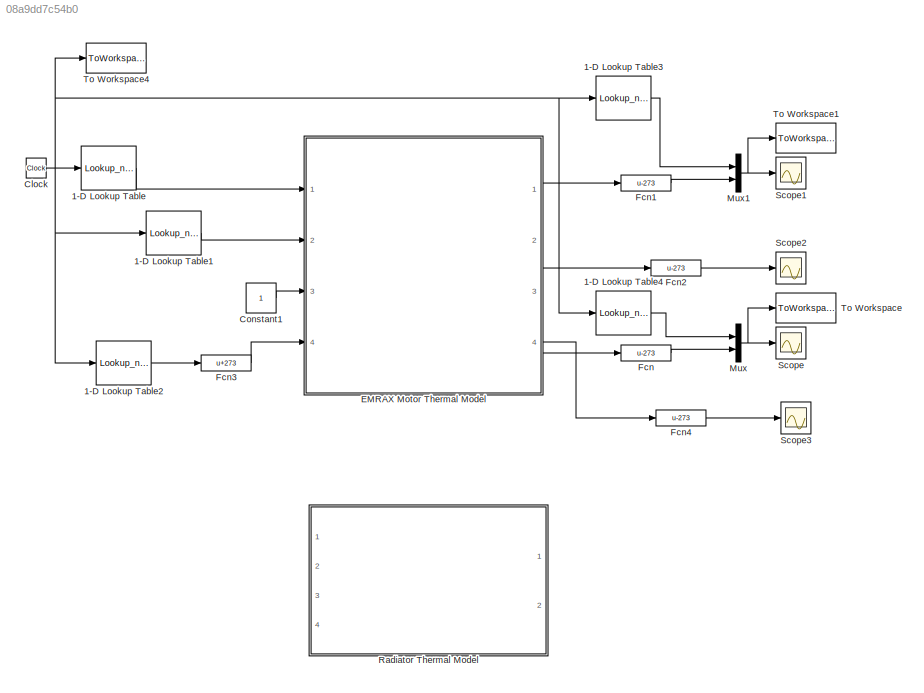
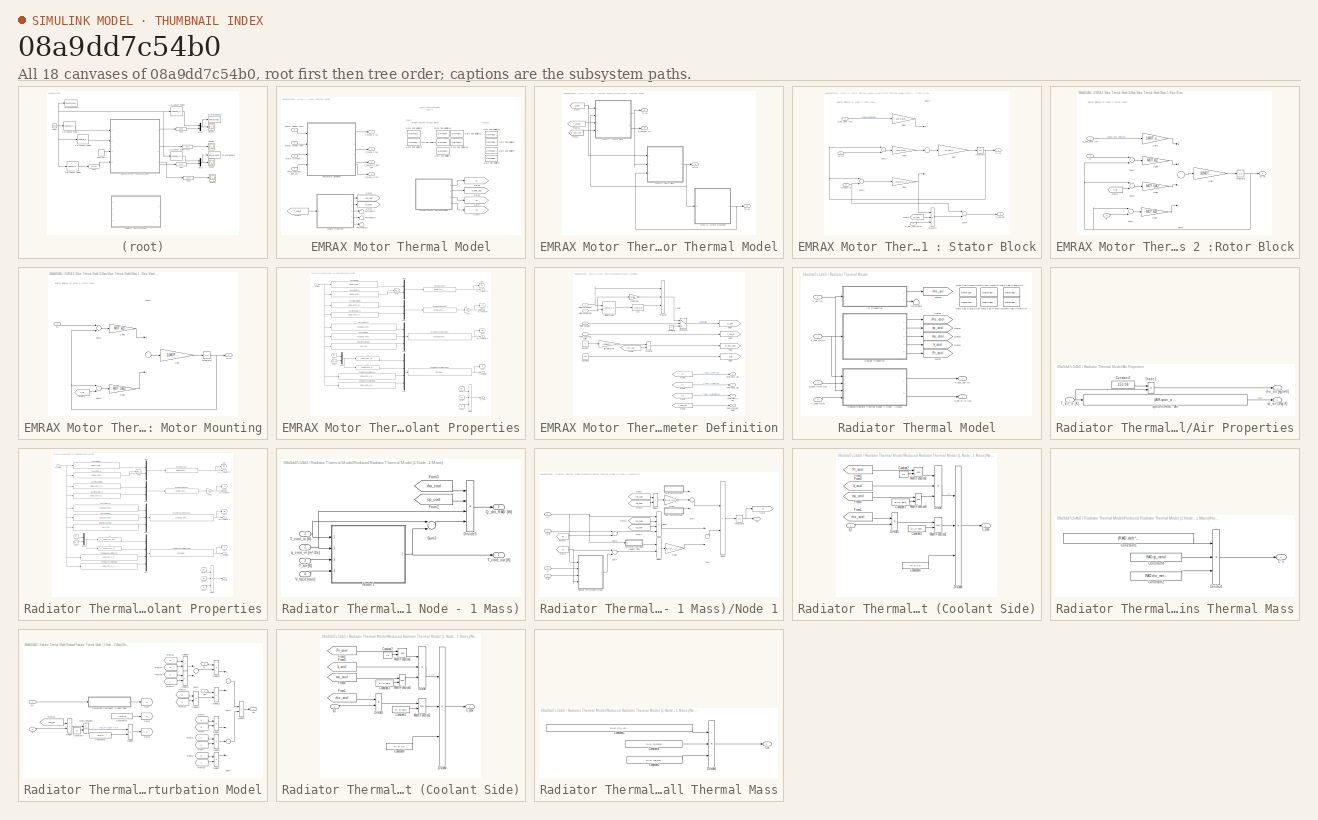
[diagram: thumbnail index - all 18 canvases of the model, root first then tree order]
MODEL slx_08a9dd7c54b0
KIND model
CONFIG AbsTol = auto
CONFIG EnableMultiTasking = on
CONFIG FixedStep = 1
CONFIG MaxStep = auto
CONFIG MinStep = auto
CONFIG RelTol = 1e-3
CONFIG SampleTimeConstraint = Unconstrained
CONFIG Solver = ode4
CONFIG SolverName = ode4
CONFIG StartTime = 0.0
CONFIG StopTime = T_end
BLOCK [Lookup_n-D] 1-D Lookup Table
  BreakpointsForDimension1 = DATA.MOT(:,1)
  InternalRulePriority = Speed
  NumberOfTableDimensions = 1
  Ports = [1, 1]
  RndMeth = Simplest
  Table = DATA.MOT(:,2)
BLOCK [Lookup_n-D] 1-D Lookup Table1
  BreakpointsForDimension1 = DATA.MOT(:,1)
  InternalRulePriority = Speed
  NumberOfTableDimensions = 1
  Ports = [1, 1]
  RndMeth = Simplest
  Table = DATA.MOT(:,3)
BLOCK [Lookup_n-D] 1-D Lookup Table2
  BreakpointsForDimension1 = DATA.MTM(:,1)
  InternalRulePriority = Speed
  NumberOfTableDimensions = 1
  Ports = [1, 1]
  RndMeth = Simplest
  Table = DATA.MTM(:,3)
BLOCK [Lookup_n-D] 1-D Lookup Table3
  BreakpointsForDimension1 = DATA.MTM(:,1)
  InternalRulePriority = Speed
  NumberOfTableDimensions = 1
  Ports = [1, 1]
  RndMeth = Simplest
  Table = DATA.MTM(:,4)
BLOCK [Lookup_n-D] 1-D Lookup Table4
  BreakpointsForDimension1 = DATA.MTM(:,1)
  InternalRulePriority = Speed
  NumberOfTableDimensions = 1
  Ports = [1, 1]
  RndMeth = Simplest
  Table = DATA.MTM(:,3)
BLOCK [Clock] Clock
BLOCK [Constant] Constant1
BLOCK [SubSystem] EMRAX Motor Thermal Model
  Ports = [4, 4]
  RequestExecContextInheritance = off
  Variant = off
BLOCK [SubSystem] EMRAX Motor Thermal Model/3-Mass Motor Thermal Model
  Ports = [0, 4]
  RequestExecContextInheritance = off
  Variant = off
BLOCK [From] EMRAX Motor Thermal Model/3-Mass Motor Thermal Model/From1
  GotoTag = m_dot_cool
  TagVisibility = scoped
BLOCK [From] EMRAX Motor Thermal Model/3-Mass Motor Thermal Model/From11
  GotoTag = T_cool_in
  TagVisibility = scoped
BLOCK [From] EMRAX Motor Thermal Model/3-Mass Motor Thermal Model/From4
  GotoTag = Q_dot
  TagVisibility = scoped
BLOCK [SubSystem] EMRAX Motor Thermal Model/3-Mass Motor Thermal Model/Mass 1 : Stator Block
  Ports = [4, 2]
  RequestExecContextInheritance = off
  Variant = off
BLOCK [From] EMRAX Motor Thermal Model/3-Mass Motor Thermal Model/Mass 1 : Stator Block/From2
  GotoTag = cp_cool
  TagVisibility = scoped
BLOCK [Gain] EMRAX Motor Thermal Model/3-Mass Motor Thermal Model/Mass 1 : Stator Block/Gain
  Gain = 1/(MOT.M1*MOT.C1)
  OutDataTypeStr = Inherit: Inherit via internal rule
  ParamDataTypeStr = Inherit: Inherit via internal rule
  SaturateOnIntegerOverflow = off
BLOCK [Gain] EMRAX Motor Thermal Model/3-Mass Motor Thermal Model/Mass 1 : Stator Block/Gain1
  Gain = MOT.alpha
  OutDataTypeStr = Inherit: Inherit via internal rule
  ParamDataTypeStr = Inherit: Inherit via internal rule
  SaturateOnIntegerOverflow = off
BLOCK [Gain] EMRAX Motor Thermal Model/3-Mass Motor Thermal Model/Mass 1 : Stator Block/Gain2
  Gain = MOT.UA1
  OutDataTypeStr = Inherit: Inherit via internal rule
  ParamDataTypeStr = Inherit: Inherit via internal rule
  SaturateOnIntegerOverflow = off
BLOCK [Gain] EMRAX Motor Thermal Model/3-Mass Motor Thermal Model/Mass 1 : Stator Block/Gain5
  Gain = MOT.k12
  OutDataTypeStr = Inherit: Inherit via internal rule
  ParamDataTypeStr = Inherit: Inherit via internal rule
  SaturateOnIntegerOverflow = off
BLOCK [Integrator] EMRAX Motor Thermal Model/3-Mass Motor Thermal Model/Mass 1 : Stator Block/Integrator
  InitialCondition = MOT.T_init
  Ports = [1, 1]
BLOCK [Product] EMRAX Motor Thermal Model/3-Mass Motor Thermal Model/Mass 1 : Stator Block/Product1
  InputSameDT = off
  Inputs = *//
  OutDataTypeStr = Inherit: Inherit via internal rule
  Ports = [3, 1]
  RndMeth = Floor
  SaturateOnIntegerOverflow = off
BLOCK [Inport] EMRAX Motor Thermal Model/3-Mass Motor Thermal Model/Mass 1 : Stator Block/Q_dot_heat [W]
  IconDisplay = Port number
BLOCK [Sum] EMRAX Motor Thermal Model/3-Mass Motor Thermal Model/Mass 1 : Stator Block/Sum1
  InputSameDT = off
  Inputs = +-
  OutDataTypeStr = Inherit: Inherit via internal rule
  Ports = [2, 1]
  SaturateOnIntegerOverflow = off
BLOCK [Sum] EMRAX Motor Thermal Model/3-Mass Motor Thermal Model/Mass 1 : Stator Block/Sum2
  InputSameDT = off
  Inputs = +-
  OutDataTypeStr = Inherit: Inherit via internal rule
  Ports = [2, 1]
  SaturateOnIntegerOverflow = off
BLOCK [Sum] EMRAX Motor Thermal Model/3-Mass Motor Thermal Model/Mass 1 : Stator Block/Sum3
  InputSameDT = off
  Inputs = +--
  OutDataTypeStr = Inherit: Inherit via internal rule
  Ports = [3, 1]
  SaturateOnIntegerOverflow = off
BLOCK [Sum] EMRAX Motor Thermal Model/3-Mass Motor Thermal Model/Mass 1 : Stator Block/Sum5
  InputSameDT = off
  OutDataTypeStr = Inherit: Inherit via internal rule
  Ports = [2, 1]
  SaturateOnIntegerOverflow = off
BLOCK [Outport] EMRAX Motor Thermal Model/3-Mass Motor Thermal Model/Mass 1 : Stator Block/T1 [K]
  IconDisplay = Port number
BLOCK [Inport] EMRAX Motor Thermal Model/3-Mass Motor Thermal Model/Mass 1 : Stator Block/T2 [K]
  IconDisplay = Port number
  Port = 2
BLOCK [Inport] EMRAX Motor Thermal Model/3-Mass Motor Thermal Model/Mass 1 : Stator Block/T_cool_in [K]
  IconDisplay = Port number
  Port = 3
BLOCK [Outport] EMRAX Motor Thermal Model/3-Mass Motor Thermal Model/Mass 1 : Stator Block/T_cool_out
  IconDisplay = Port number
  Port = 2
BLOCK [Inport] EMRAX Motor Thermal Model/3-Mass Motor Thermal Model/Mass 1 : Stator Block/m_dot_cool [kg//s]
  IconDisplay = Port number
  Port = 4
BLOCK [SubSystem] EMRAX Motor Thermal Model/3-Mass Motor Thermal Model/Mass 2 :Rotor Block
  Ports = [3, 1]
  RequestExecContextInheritance = off
  Variant = off
BLOCK [From] EMRAX Motor Thermal Model/3-Mass Motor Thermal Model/Mass 2 :Rotor Block/From1
  GotoTag = T_air
  TagVisibility = scoped
BLOCK [Gain] EMRAX Motor Thermal Model/3-Mass Motor Thermal Model/Mass 2 :Rotor Block/Gain
  Gain = 1/(MOT.M2*MOT.C2)
  OutDataTypeStr = Inherit: Inherit via internal rule
  ParamDataTypeStr = Inherit: Inherit via internal rule
  SaturateOnIntegerOverflow = off
BLOCK [Gain] EMRAX Motor Thermal Model/3-Mass Motor Thermal Model/Mass 2 :Rotor Block/Gain1
  Gain = 1-MOT.alpha
  OutDataTypeStr = Inherit: Inherit via internal rule
  ParamDataTypeStr = Inherit: Inherit via internal rule
  SaturateOnIntegerOverflow = off
BLOCK [Gain] EMRAX Motor Thermal Model/3-Mass Motor Thermal Model/Mass 2 :Rotor Block/Gain2
  Gain = MOT.UA2
  OutDataTypeStr = Inherit: Inherit via internal rule
  ParamDataTypeStr = Inherit: Inherit via internal rule
  SaturateOnIntegerOverflow = off
BLOCK [Gain] EMRAX Motor Thermal Model/3-Mass Motor Thermal Model/Mass 2 :Rotor Block/Gain3
  Gain = MOT.k23
  OutDataTypeStr = Inherit: Inherit via internal rule
  ParamDataTypeStr = Inherit: Inherit via internal rule
  SaturateOnIntegerOverflow = off
BLOCK [Gain] EMRAX Motor Thermal Model/3-Mass Motor Thermal Model/Mass 2 :Rotor Block/Gain5
  Gain = MOT.k12
  OutDataTypeStr = Inherit: Inherit via internal rule
  ParamDataTypeStr = Inherit: Inherit via internal rule
  SaturateOnIntegerOverflow = off
BLOCK [Integrator] EMRAX Motor Thermal Model/3-Mass Motor Thermal Model/Mass 2 :Rotor Block/Integrator
  InitialCondition = MOT.T_init
  Ports = [1, 1]
BLOCK [Inport] EMRAX Motor Thermal Model/3-Mass Motor Thermal Model/Mass 2 :Rotor Block/Q_dot_heat [W]
  IconDisplay = Port number
BLOCK [Sum] EMRAX Motor Thermal Model/3-Mass Motor Thermal Model/Mass 2 :Rotor Block/Sum1
  InputSameDT = off
  Inputs = +-
  OutDataTypeStr = Inherit: Inherit via internal rule
  Ports = [2, 1]
  SaturateOnIntegerOverflow = off
BLOCK [Sum] EMRAX Motor Thermal Model/3-Mass Motor Thermal Model/Mass 2 :Rotor Block/Sum2
  InputSameDT = off
  Inputs = +-
  OutDataTypeStr = Inherit: Inherit via internal rule
  Ports = [2, 1]
  SaturateOnIntegerOverflow = off
BLOCK [Sum] EMRAX Motor Thermal Model/3-Mass Motor Thermal Model/Mass 2 :Rotor Block/Sum3
  InputSameDT = off
  Inputs = ++--
  OutDataTypeStr = Inherit: Inherit via internal rule
  Ports = [4, 1]
  SaturateOnIntegerOverflow = off
BLOCK [Sum] EMRAX Motor Thermal Model/3-Mass Motor Thermal Model/Mass 2 :Rotor Block/Sum4
  InputSameDT = off
  Inputs = +-
  OutDataTypeStr = Inherit: Inherit via internal rule
  Ports = [2, 1]
  SaturateOnIntegerOverflow = off
BLOCK [Inport] EMRAX Motor Thermal Model/3-Mass Motor Thermal Model/Mass 2 :Rotor Block/T1
  IconDisplay = Port number
  Port = 2
BLOCK [Outport] EMRAX Motor Thermal Model/3-Mass Motor Thermal Model/Mass 2 :Rotor Block/T2 [K]
  IconDisplay = Port number
BLOCK [Inport] EMRAX Motor Thermal Model/3-Mass Motor Thermal Model/Mass 2 :Rotor Block/T3
  IconDisplay = Port number
  Port = 3
BLOCK [SubSystem] EMRAX Motor Thermal Model/3-Mass Motor Thermal Model/Mass 3 : Motor Mounting
  Ports = [1, 1]
  RequestExecContextInheritance = off
  Variant = off
BLOCK [From] EMRAX Motor Thermal Model/3-Mass Motor Thermal Model/Mass 3 : Motor Mounting/From1
  GotoTag = T_air
  TagVisibility = scoped
BLOCK [Gain] EMRAX Motor Thermal Model/3-Mass Motor Thermal Model/Mass 3 : Motor Mounting/Gain
  Gain = 1/(MOT.M3*MOT.C3)
  OutDataTypeStr = Inherit: Inherit via internal rule
  ParamDataTypeStr = Inherit: Inherit via internal rule
  SaturateOnIntegerOverflow = off
BLOCK [Gain] EMRAX Motor Thermal Model/3-Mass Motor Thermal Model/Mass 3 : Motor Mounting/Gain2
  Gain = MOT.UA3
  OutDataTypeStr = Inherit: Inherit via internal rule
  ParamDataTypeStr = Inherit: Inherit via internal rule
  SaturateOnIntegerOverflow = off
BLOCK [Gain] EMRAX Motor Thermal Model/3-Mass Motor Thermal Model/Mass 3 : Motor Mounting/Gain5
  Gain = MOT.k23
  OutDataTypeStr = Inherit: Inherit via internal rule
  ParamDataTypeStr = Inherit: Inherit via internal rule
  SaturateOnIntegerOverflow = off
BLOCK [Integrator] EMRAX Motor Thermal Model/3-Mass Motor Thermal Model/Mass 3 : Motor Mounting/Integrator
  InitialCondition = MOT.T_init
  Ports = [1, 1]
BLOCK [Sum] EMRAX Motor Thermal Model/3-Mass Motor Thermal Model/Mass 3 : Motor Mounting/Sum1
  InputSameDT = off
  Inputs = +-
  OutDataTypeStr = Inherit: Inherit via internal rule
  Ports = [2, 1]
  SaturateOnIntegerOverflow = off
BLOCK [Sum] EMRAX Motor Thermal Model/3-Mass Motor Thermal Model/Mass 3 : Motor Mounting/Sum2
  InputSameDT = off
  Inputs = +-
  OutDataTypeStr = Inherit: Inherit via internal rule
  Ports = [2, 1]
  SaturateOnIntegerOverflow = off
BLOCK [Sum] EMRAX Motor Thermal Model/3-Mass Motor Thermal Model/Mass 3 : Motor Mounting/Sum3
  InputSameDT = off
  Inputs = +-
  OutDataTypeStr = Inherit: Inherit via internal rule
  Ports = [2, 1]
  SaturateOnIntegerOverflow = off
BLOCK [Inport] EMRAX Motor Thermal Model/3-Mass Motor Thermal Model/Mass 3 : Motor Mounting/T2 
  IconDisplay = Port number
BLOCK [Outport] EMRAX Motor Thermal Model/3-Mass Motor Thermal Model/Mass 3 : Motor Mounting/T3 [K]
  IconDisplay = Port number
BLOCK [Outport] EMRAX Motor Thermal Model/3-Mass Motor Thermal Model/T1 [K]
  IconDisplay = Port number
BLOCK [Outport] EMRAX Motor Thermal Model/3-Mass Motor Thermal Model/T2 [K]
  IconDisplay = Port number
  Port = 3
BLOCK [Outport] EMRAX Motor Thermal Model/3-Mass Motor Thermal Model/T3 [K]
  IconDisplay = Port number
  Port = 4
BLOCK [Outport] EMRAX Motor Thermal Model/3-Mass Motor Thermal Model/T_cool_out [K]
  IconDisplay = Port number
  Port = 2
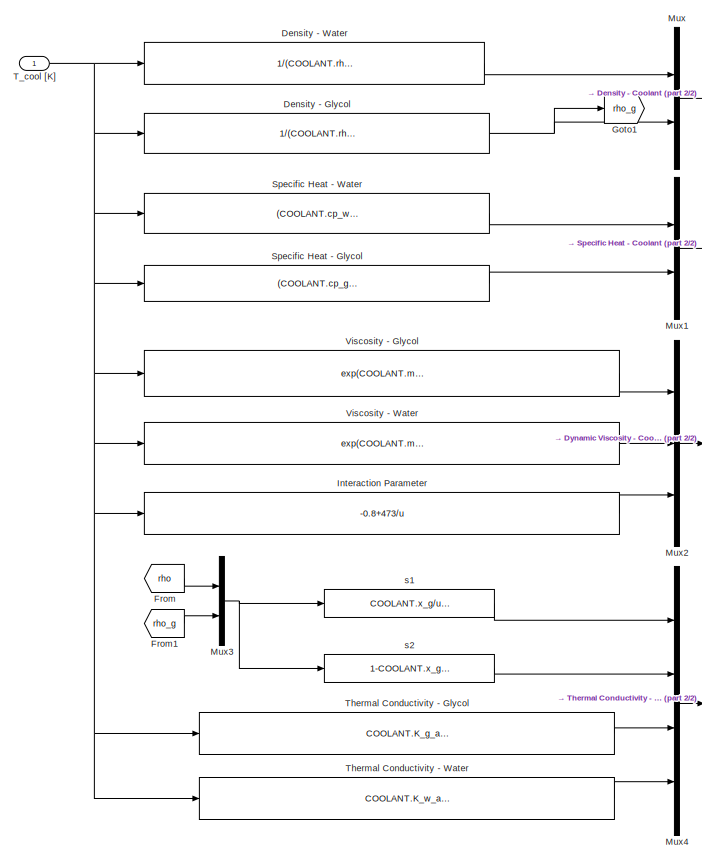
[diagram: EMRAX Motor Thermal Model/Coolant Properties - part 1/2, left side, full height]
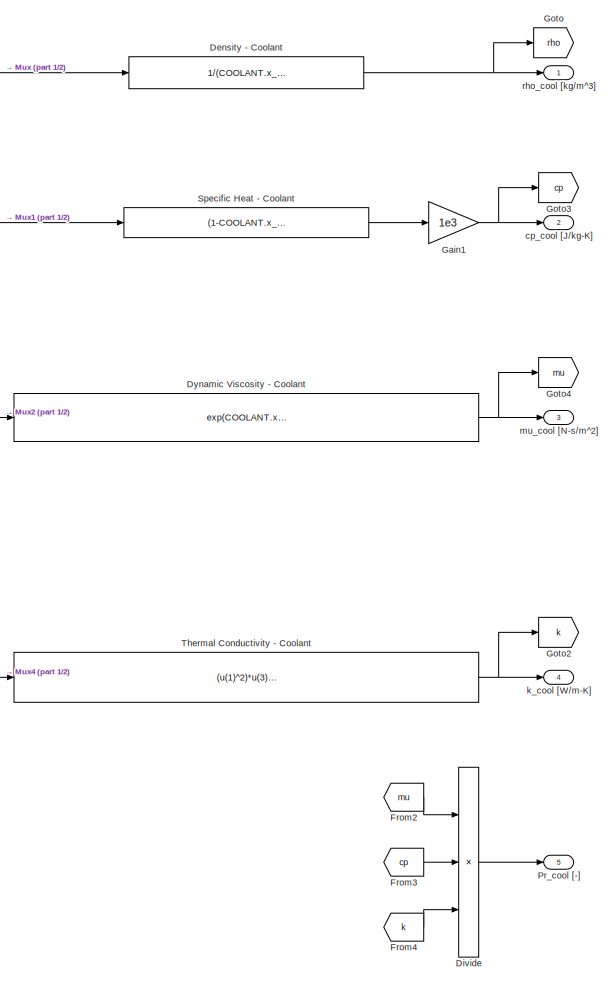
[diagram: EMRAX Motor Thermal Model/Coolant Properties - part 2/2, right side, full height]
BLOCK [SubSystem] EMRAX Motor Thermal Model/Coolant Properties
  Ports = [1, 5]
  RequestExecContextInheritance = off
  Variant = off
BLOCK [Fcn] EMRAX Motor Thermal Model/Coolant Properties/Density - Coolant
  Expr = 1/(COOLANT.x_g/u(1) + COOLANT.x_g/u(2))
BLOCK [Fcn] EMRAX Motor Thermal Model/Coolant Properties/Density - Glycol
  Expr = 1/(COOLANT.rho_g_a+COOLANT.rho_g_b*u+COOLANT.rho_g_c*u^2)
BLOCK [Fcn] EMRAX Motor Thermal Model/Coolant Properties/Density - Water
  Expr = 1/(COOLANT.rho_w_a+COOLANT.rho_w_b*u+COOLANT.rho_w_c*u^2)
BLOCK [Product] EMRAX Motor Thermal Model/Coolant Properties/Divide
  InputSameDT = off
  Inputs = **/
  OutDataTypeStr = Inherit: Inherit via internal rule
  Ports = [3, 1]
  RndMeth = Floor
  SaturateOnIntegerOverflow = off
BLOCK [Fcn] EMRAX Motor Thermal Model/Coolant Properties/Dynamic Viscosity - Coolant
  Expr = exp(COOLANT.x_g*log(u(1))+(1-COOLANT.x_g)*log(u(2))-COOLANT.x_g*(1-COOLANT.x_g)*u(3))
BLOCK [From] EMRAX Motor Thermal Model/Coolant Properties/From
  GotoTag = rho
BLOCK [From] EMRAX Motor Thermal Model/Coolant Properties/From1
  GotoTag = rho_g
BLOCK [From] EMRAX Motor Thermal Model/Coolant Properties/From2
  GotoTag = mu
BLOCK [From] EMRAX Motor Thermal Model/Coolant Properties/From3
  GotoTag = cp
BLOCK [From] EMRAX Motor Thermal Model/Coolant Properties/From4
  GotoTag = k
BLOCK [Gain] EMRAX Motor Thermal Model/Coolant Properties/Gain1
  Gain = 1e3
  OutDataTypeStr = Inherit: Inherit via internal rule
  ParamDataTypeStr = Inherit: Inherit via internal rule
  SaturateOnIntegerOverflow = off
BLOCK [Goto] EMRAX Motor Thermal Model/Coolant Properties/Goto
  GotoTag = rho
BLOCK [Goto] EMRAX Motor Thermal Model/Coolant Properties/Goto1
  GotoTag = rho_g
BLOCK [Goto] EMRAX Motor Thermal Model/Coolant Properties/Goto2
  GotoTag = k
BLOCK [Goto] EMRAX Motor Thermal Model/Coolant Properties/Goto3
  GotoTag = cp
BLOCK [Goto] EMRAX Motor Thermal Model/Coolant Properties/Goto4
  GotoTag = mu
BLOCK [Fcn] EMRAX Motor Thermal Model/Coolant Properties/Interaction Parameter
  Expr = -0.8+473/u
BLOCK [Mux] EMRAX Motor Thermal Model/Coolant Properties/Mux
  DisplayOption = bar
  Inputs = 2
  Ports = [2, 1]
BLOCK [Mux] EMRAX Motor Thermal Model/Coolant Properties/Mux1
  DisplayOption = bar
  Inputs = 2
  Ports = [2, 1]
BLOCK [Mux] EMRAX Motor Thermal Model/Coolant Properties/Mux2
  DisplayOption = bar
  Inputs = 3
  Ports = [3, 1]
BLOCK [Mux] EMRAX Motor Thermal Model/Coolant Properties/Mux3
  DisplayOption = bar
  Inputs = 2
  Ports = [2, 1]
BLOCK [Mux] EMRAX Motor Thermal Model/Coolant Properties/Mux4
  DisplayOption = bar
  Ports = [4, 1]
BLOCK [Outport] EMRAX Motor Thermal Model/Coolant Properties/Pr_cool [-]
  IconDisplay = Port number
  Port = 5
BLOCK [Fcn] EMRAX Motor Thermal Model/Coolant Properties/Specific Heat - Coolant
  Expr = (1-COOLANT.x_g)*u(1) + COOLANT.x_g*u(2)
BLOCK [Fcn] EMRAX Motor Thermal Model/Coolant Properties/Specific Heat - Glycol
  Expr = (COOLANT.cp_g_a+COOLANT.cp_g_b*u)
BLOCK [Fcn] EMRAX Motor Thermal Model/Coolant Properties/Specific Heat - Water
  Expr = (COOLANT.cp_w_a+COOLANT.cp_w_b*u)
BLOCK [Inport] EMRAX Motor Thermal Model/Coolant Properties/T_cool [K]
  IconDisplay = Port number
BLOCK [Fcn] EMRAX Motor Thermal Model/Coolant Properties/Thermal Conductivity - Coolant
  Expr = (u(1)^2)*u(3)+2*u(1)*u(2)*(2/(1/u(4)+1/u(3)))+(u(2)^2)*u(4)
BLOCK [Fcn] EMRAX Motor Thermal Model/Coolant Properties/Thermal Conductivity - Glycol
  Expr = COOLANT.K_g_a + COOLANT.K_g_b*u + COOLANT.K_g_c*u^2
BLOCK [Fcn] EMRAX Motor Thermal Model/Coolant Properties/Thermal Conductivity - Water
  Expr = COOLANT.K_w_a + COOLANT.K_w_b*u + COOLANT.K_w_c*u^2
BLOCK [Fcn] EMRAX Motor Thermal Model/Coolant Properties/Viscosity - Glycol
  Expr = exp(COOLANT.mu_g_a + COOLANT.mu_g_b/u + COOLANT.mu_g_c*u + COOLANT.mu_g_d*u^2)
BLOCK [Fcn] EMRAX Motor Thermal Model/Coolant Properties/Viscosity - Water
  Expr = exp(COOLANT.mu_w_a + COOLANT.mu_w_b/u + COOLANT.mu_w_c*u + COOLANT.mu_w_d*u^2)
BLOCK [Outport] EMRAX Motor Thermal Model/Coolant Properties/cp_cool [J//kg-K]
  IconDisplay = Port number
  Port = 2
BLOCK [Outport] EMRAX Motor Thermal Model/Coolant Properties/k_cool [W//m-K]
  IconDisplay = Port number
  Port = 4
BLOCK [Outport] EMRAX Motor Thermal Model/Coolant Properties/mu_cool [N-s//m^2]
  IconDisplay = Port number
  Port = 3
BLOCK [Outport] EMRAX Motor Thermal Model/Coolant Properties/rho_cool [kg//m^3]
  IconDisplay = Port number
BLOCK [Fcn] EMRAX Motor Thermal Model/Coolant Properties/s1
  Expr = COOLANT.x_g/u(2)*u(1)
BLOCK [Fcn] EMRAX Motor Thermal Model/Coolant Properties/s2
  Expr = 1-COOLANT.x_g/u(2)*u(1)
BLOCK [From] EMRAX Motor Thermal Model/From1
  GotoTag = T_cool_in
  TagVisibility = scoped
BLOCK [GotoTagVisibility] EMRAX Motor Thermal Model/Goto Tag Visibility1
  GotoTag = T2
BLOCK [GotoTagVisibility] EMRAX Motor Thermal Model/Goto Tag Visibility14
  GotoTag = m_dot_cool
BLOCK [GotoTagVisibility] EMRAX Motor Thermal Model/Goto Tag Visibility16
  GotoTag = cp_cool
BLOCK [GotoTagVisibility] EMRAX Motor Thermal Model/Goto Tag Visibility2
  GotoTag = Q_dot
BLOCK [GotoTagVisibility] EMRAX Motor Thermal Model/Goto Tag Visibility21
  GotoTag = T1
BLOCK [GotoTagVisibility] EMRAX Motor Thermal Model/Goto Tag Visibility23
  GotoTag = rho_cool
BLOCK [GotoTagVisibility] EMRAX Motor Thermal Model/Goto Tag Visibility3
  GotoTag = alpha
BLOCK [GotoTagVisibility] EMRAX Motor Thermal Model/Goto Tag Visibility4
  GotoTag = T_air
BLOCK [GotoTagVisibility] EMRAX Motor Thermal Model/Goto Tag Visibility5
  GotoTag = T_cool_in
BLOCK [GotoTagVisibility] EMRAX Motor Thermal Model/Goto Tag Visibility6
  GotoTag = T_cool_out
BLOCK [GotoTagVisibility] EMRAX Motor Thermal Model/Goto Tag Visibility7
  GotoTag = T3
BLOCK [Goto] EMRAX Motor Thermal Model/Goto1
  GotoTag = cp_cool
  TagVisibility = scoped
BLOCK [Goto] EMRAX Motor Thermal Model/Goto2
  GotoTag = T_cool_out
  TagVisibility = scoped
BLOCK [Goto] EMRAX Motor Thermal Model/Goto3
  GotoTag = rho_cool
  TagVisibility = scoped
BLOCK [Goto] EMRAX Motor Thermal Model/Goto4
  GotoTag = T3
  TagVisibility = scoped
BLOCK [Goto] EMRAX Motor Thermal Model/Goto5
  GotoTag = T1
  TagVisibility = scoped
BLOCK [Goto] EMRAX Motor Thermal Model/Goto7
  GotoTag = T2
  TagVisibility = scoped
BLOCK [Inport] EMRAX Motor Thermal Model/Motor ON Flag [-]
  IconDisplay = Port number
  Port = 3
BLOCK [Inport] EMRAX Motor Thermal Model/Motor Speed [rpm]
  IconDisplay = Port number
BLOCK [Inport] EMRAX Motor Thermal Model/Motor Torque [Nm]
  IconDisplay = Port number
  Port = 2
BLOCK [SubSystem] EMRAX Motor Thermal Model/Parameter Definition
  Ports = [4, 4]
  RequestExecContextInheritance = off
  Variant = off
BLOCK [Constant] EMRAX Motor Thermal Model/Parameter Definition/Constant
  Value = 8
BLOCK [Constant] EMRAX Motor Thermal Model/Parameter Definition/Constant1
  Value = 293
BLOCK [Constant] EMRAX Motor Thermal Model/Parameter Definition/Constant4
  Value = 0
BLOCK [Lookup_n-D] EMRAX Motor Thermal Model/Parameter Definition/Efficiency Map
  BreakpointsForDimension1 = MOT.RPM
  BreakpointsForDimension2 = MOT.Torque
  ExtrapMethod = Clip
  Ports = [2, 1]
  RndMeth = Simplest
  Table = MOT.eta'
  UseLastTableValue = on
BLOCK [Switch] EMRAX Motor Thermal Model/Parameter Definition/Engine ON 1
  Criteria = u2 > Threshold
  InputSameDT = off
  SaturateOnIntegerOverflow = off
BLOCK [Fcn] EMRAX Motor Thermal Model/Parameter Definition/Fcn
  Expr = (100-u)/u
BLOCK [From] EMRAX Motor Thermal Model/Parameter Definition/From1
  GotoTag = T2
  TagVisibility = scoped
BLOCK [From] EMRAX Motor Thermal Model/Parameter Definition/From2
  GotoTag = rho_cool
  TagVisibility = scoped
BLOCK [From] EMRAX Motor Thermal Model/Parameter Definition/From3
  GotoTag = T_cool_out
  TagVisibility = scoped
BLOCK [From] EMRAX Motor Thermal Model/Parameter Definition/From4
  GotoTag = T1
  TagVisibility = scoped
BLOCK [From] EMRAX Motor Thermal Model/Parameter Definition/From5
  GotoTag = T3
  TagVisibility = scoped
BLOCK [Goto] EMRAX Motor Thermal Model/Parameter Definition/Goto1
  GotoTag = m_dot_cool
  TagVisibility = scoped
BLOCK [Goto] EMRAX Motor Thermal Model/Parameter Definition/Goto2
  GotoTag = T_air
  TagVisibility = scoped
BLOCK [Goto] EMRAX Motor Thermal Model/Parameter Definition/Goto4
  GotoTag = Q_dot
  TagVisibility = scoped
BLOCK [Goto] EMRAX Motor Thermal Model/Parameter Definition/Goto6
  GotoTag = T_cool_in
  TagVisibility = scoped
BLOCK [Inport] EMRAX Motor Thermal Model/Parameter Definition/Motor ON Flag [-]
  IconDisplay = Port number
  Port = 3
BLOCK [Inport] EMRAX Motor Thermal Model/Parameter Definition/Motor Speed [rpm]
  IconDisplay = Port number
BLOCK [Inport] EMRAX Motor Thermal Model/Parameter Definition/Motor Torque [Nm]
  IconDisplay = Port number
  Port = 2
BLOCK [Product] EMRAX Motor Thermal Model/Parameter Definition/Product1
  InputSameDT = off
  Inputs = 3
  OutDataTypeStr = Inherit: Inherit via internal rule
  Ports = [3, 1]
  RndMeth = Floor
  SaturateOnIntegerOverflow = off
BLOCK [Product] EMRAX Motor Thermal Model/Parameter Definition/Product2
  InputSameDT = off
  OutDataTypeStr = Inherit: Inherit via internal rule
  Ports = [2, 1]
  RndMeth = Floor
  SaturateOnIntegerOverflow = off
BLOCK [Outport] EMRAX Motor Thermal Model/Parameter Definition/Temp_cool_MOT_out  [K]
  IconDisplay = Port number
  Port = 3
BLOCK [Inport] EMRAX Motor Thermal Model/Parameter Definition/Temp_cool_RAD_out [K]
  IconDisplay = Port number
  Port = 4
BLOCK [Outport] EMRAX Motor Thermal Model/Parameter Definition/Temp_mass_1  [K]
  IconDisplay = Port number
BLOCK [Outport] EMRAX Motor Thermal Model/Parameter Definition/Temp_mass_2  [K]
  IconDisplay = Port number
  Port = 2
BLOCK [Outport] EMRAX Motor Thermal Model/Parameter Definition/Temp_mass_3  [K]1
  IconDisplay = Port number
  Port = 4
BLOCK [Gain] EMRAX Motor Thermal Model/Parameter Definition/liters//min 2 m^3//s
  Gain = 1.66667e-5
  OutDataTypeStr = Inherit: Inherit via internal rule
  ParamDataTypeStr = Inherit: Inherit via internal rule
  SaturateOnIntegerOverflow = off
BLOCK [Gain] EMRAX Motor Thermal Model/Parameter Definition/rpm 2 rad//s
  Gain = pi/30
  OutDataTypeStr = Inherit: Inherit via internal rule
  ParamDataTypeStr = Inherit: Inherit via internal rule
  SaturateOnIntegerOverflow = off
BLOCK [Outport] EMRAX Motor Thermal Model/T_cool_MOT_out [K]
  IconDisplay = Port number
  Port = 3
BLOCK [Outport] EMRAX Motor Thermal Model/T_mass_1 [K]
  IconDisplay = Port number
BLOCK [Outport] EMRAX Motor Thermal Model/T_mass_2 [K]
  IconDisplay = Port number
  Port = 2
BLOCK [Outport] EMRAX Motor Thermal Model/T_mass_3 [K]1
  IconDisplay = Port number
  Port = 4
BLOCK [Inport] EMRAX Motor Thermal Model/Temp_cool_RAD_out [K]
  IconDisplay = Port number
  Port = 4
BLOCK [Terminator] EMRAX Motor Thermal Model/Terminator
BLOCK [Terminator] EMRAX Motor Thermal Model/Terminator1
BLOCK [Terminator] EMRAX Motor Thermal Model/Terminator2
BLOCK [Fcn] Fcn
  Expr = u-273
BLOCK [Fcn] Fcn1
  Expr = u-273
BLOCK [Fcn] Fcn2
  Expr = u-273
BLOCK [Fcn] Fcn3
  Expr = u+273
BLOCK [Fcn] Fcn4
  Expr = u-273
BLOCK [Mux] Mux
  DisplayOption = bar
  Inputs = 2
  Ports = [2, 1]
BLOCK [Mux] Mux1
  DisplayOption = bar
  Inputs = 2
  Ports = [2, 1]
BLOCK [SubSystem] Radiator Thermal Model
  Commented = on
  Ports = [4, 2]
  RequestExecContextInheritance = off
  Variant = off
BLOCK [SubSystem] Radiator Thermal Model/Air Properties
  Ports = [1, 2]
  RequestExecContextInheritance = off
  Variant = off
BLOCK [Constant] Radiator Thermal Model/Air Properties/Constant1
  Value = 353.08
BLOCK [Product] Radiator Thermal Model/Air Properties/Divide2
  InputSameDT = off
  Inputs = */
  OutDataTypeStr = Inherit: Inherit via internal rule
  Ports = [2, 1]
  RndMeth = Floor
  SaturateOnIntegerOverflow = off
BLOCK [Fcn] Radiator Thermal Model/Air Properties/Specific Heat - Air
  Expr = (AIR.cpair_a + AIR.cpair_b*u + AIR.cpair_c*u^2 + AIR.cpair_d*u^3 + AIR.cpair_e*u^4)*287
BLOCK [Inport] Radiator Thermal Model/Air Properties/T_air_in [K]
  IconDisplay = Port number
BLOCK [Outport] Radiator Thermal Model/Air Properties/cp_air [J//kg-K]
  IconDisplay = Port number
  Port = 2
BLOCK [Outport] Radiator Thermal Model/Air Properties/rho_air [kg//m^3]
  IconDisplay = Port number
BLOCK [SubSystem] Radiator Thermal Model/Coolant Properties
  Ports = [1, 5]
  RequestExecContextInheritance = off
  Variant = off
BLOCK [Fcn] Radiator Thermal Model/Coolant Properties/Density - Coolant
  Expr = 1/(COOLANT.x_g/u(1) + COOLANT.x_g/u(2))
BLOCK [Fcn] Radiator Thermal Model/Coolant Properties/Density - Glycol
  Expr = 1/(COOLANT.rho_g_a+COOLANT.rho_g_b*u+COOLANT.rho_g_c*u^2)
BLOCK [Fcn] Radiator Thermal Model/Coolant Properties/Density - Water
  Expr = 1/(COOLANT.rho_w_a+COOLANT.rho_w_b*u+COOLANT.rho_w_c*u^2)
BLOCK [Product] Radiator Thermal Model/Coolant Properties/Divide
  InputSameDT = off
  Inputs = **/
  OutDataTypeStr = Inherit: Inherit via internal rule
  Ports = [3, 1]
  RndMeth = Floor
  SaturateOnIntegerOverflow = off
BLOCK [Fcn] Radiator Thermal Model/Coolant Properties/Dynamic Viscosity - Coolant
  Expr = exp(COOLANT.x_g*log(u(1))+(1-COOLANT.x_g)*log(u(2))-COOLANT.x_g*(1-COOLANT.x_g)*u(3))
BLOCK [From] Radiator Thermal Model/Coolant Properties/From
  GotoTag = rho
BLOCK [From] Radiator Thermal Model/Coolant Properties/From1
  GotoTag = rho_g
BLOCK [From] Radiator Thermal Model/Coolant Properties/From2
  GotoTag = mu
BLOCK [From] Radiator Thermal Model/Coolant Properties/From3
  GotoTag = cp
BLOCK [From] Radiator Thermal Model/Coolant Properties/From4
  GotoTag = k
BLOCK [Gain] Radiator Thermal Model/Coolant Properties/Gain1
  Gain = 1e3
  OutDataTypeStr = Inherit: Inherit via internal rule
  ParamDataTypeStr = Inherit: Inherit via internal rule
  SaturateOnIntegerOverflow = off
BLOCK [Goto] Radiator Thermal Model/Coolant Properties/Goto
  GotoTag = rho
BLOCK [Goto] Radiator Thermal Model/Coolant Properties/Goto1
  GotoTag = rho_g
BLOCK [Goto] Radiator Thermal Model/Coolant Properties/Goto2
  GotoTag = k
BLOCK [Goto] Radiator Thermal Model/Coolant Properties/Goto3
  GotoTag = cp
BLOCK [Goto] Radiator Thermal Model/Coolant Properties/Goto4
  GotoTag = mu
BLOCK [Fcn] Radiator Thermal Model/Coolant Properties/Interaction Parameter
  Expr = -0.8+473/u
BLOCK [Mux] Radiator Thermal Model/Coolant Properties/Mux
  DisplayOption = bar
  Inputs = 2
  Ports = [2, 1]
BLOCK [Mux] Radiator Thermal Model/Coolant Properties/Mux1
  DisplayOption = bar
  Inputs = 2
  Ports = [2, 1]
BLOCK [Mux] Radiator Thermal Model/Coolant Properties/Mux2
  DisplayOption = bar
  Inputs = 3
  Ports = [3, 1]
BLOCK [Mux] Radiator Thermal Model/Coolant Properties/Mux3
  DisplayOption = bar
  Inputs = 2
  Ports = [2, 1]
BLOCK [Mux] Radiator Thermal Model/Coolant Properties/Mux4
  DisplayOption = bar
  Ports = [4, 1]
BLOCK [Outport] Radiator Thermal Model/Coolant Properties/Pr_cool [-]
  IconDisplay = Port number
  Port = 5
BLOCK [Fcn] Radiator Thermal Model/Coolant Properties/Specific Heat - Coolant
  Expr = (1-COOLANT.x_g)*u(1) + COOLANT.x_g*u(2)
BLOCK [Fcn] Radiator Thermal Model/Coolant Properties/Specific Heat - Glycol
  Expr = (COOLANT.cp_g_a+COOLANT.cp_g_b*u)
BLOCK [Fcn] Radiator Thermal Model/Coolant Properties/Specific Heat - Water
  Expr = (COOLANT.cp_w_a+COOLANT.cp_w_b*u)
BLOCK [Inport] Radiator Thermal Model/Coolant Properties/T_cool [K]
  IconDisplay = Port number
BLOCK [Fcn] Radiator Thermal Model/Coolant Properties/Thermal Conductivity - Coolant
  Expr = (u(1)^2)*u(3)+2*u(1)*u(2)*(2/(1/u(4)+1/u(3)))+(u(2)^2)*u(4)
BLOCK [Fcn] Radiator Thermal Model/Coolant Properties/Thermal Conductivity - Glycol
  Expr = COOLANT.K_g_a + COOLANT.K_g_b*u + COOLANT.K_g_c*u^2
BLOCK [Fcn] Radiator Thermal Model/Coolant Properties/Thermal Conductivity - Water
  Expr = COOLANT.K_w_a + COOLANT.K_w_b*u + COOLANT.K_w_c*u^2
BLOCK [Fcn] Radiator Thermal Model/Coolant Properties/Viscosity - Glycol
  Expr = exp(COOLANT.mu_g_a + COOLANT.mu_g_b/u + COOLANT.mu_g_c*u + COOLANT.mu_g_d*u^2)
BLOCK [Fcn] Radiator Thermal Model/Coolant Properties/Viscosity - Water
  Expr = exp(COOLANT.mu_w_a + COOLANT.mu_w_b/u + COOLANT.mu_w_c*u + COOLANT.mu_w_d*u^2)
BLOCK [Outport] Radiator Thermal Model/Coolant Properties/cp_cool [J//kg-K]
  IconDisplay = Port number
  Port = 2
BLOCK [Outport] Radiator Thermal Model/Coolant Properties/k_cool [W//m-K]
  IconDisplay = Port number
  Port = 4
BLOCK [Outport] Radiator Thermal Model/Coolant Properties/mu_cool [N-s//m^2]
  IconDisplay = Port number
  Port = 3
BLOCK [Outport] Radiator Thermal Model/Coolant Properties/rho_cool [kg//m^3]
  IconDisplay = Port number
BLOCK [Fcn] Radiator Thermal Model/Coolant Properties/s1
  Expr = COOLANT.x_g/u(2)*u(1)
BLOCK [Fcn] Radiator Thermal Model/Coolant Properties/s2
  Expr = 1-COOLANT.x_g/u(2)*u(1)
BLOCK [GotoTagVisibility] Radiator Thermal Model/Goto Tag Visibility10
  GotoTag = rho_air
BLOCK [GotoTagVisibility] Radiator Thermal Model/Goto Tag Visibility3
  GotoTag = rho_cool
BLOCK [GotoTagVisibility] Radiator Thermal Model/Goto Tag Visibility4
  GotoTag = cp_cool
BLOCK [GotoTagVisibility] Radiator Thermal Model/Goto Tag Visibility7
  GotoTag = mu_cool
BLOCK [GotoTagVisibility] Radiator Thermal Model/Goto Tag Visibility8
  GotoTag = k_cool
BLOCK [GotoTagVisibility] Radiator Thermal Model/Goto Tag Visibility9
  GotoTag = Pr_cool
BLOCK [Goto] Radiator Thermal Model/Goto1
  GotoTag = cp_cool
  TagVisibility = scoped
BLOCK [Goto] Radiator Thermal Model/Goto3
  GotoTag = rho_cool
  TagVisibility = scoped
BLOCK [Goto] Radiator Thermal Model/Goto4
  GotoTag = k_cool
  TagVisibility = scoped
BLOCK [Goto] Radiator Thermal Model/Goto6
  GotoTag = mu_cool
  TagVisibility = scoped
BLOCK [Goto] Radiator Thermal Model/Goto7
  GotoTag = Pr_cool
  TagVisibility = scoped
BLOCK [Goto] Radiator Thermal Model/Goto9
  GotoTag = rho_air
  TagVisibility = scoped
BLOCK [Outport] Radiator Thermal Model/Q_dot_RAD [W]
  IconDisplay = Port number
  Port = 2
BLOCK [SubSystem] Radiator Thermal Model/Reduced Radiator Thermal Model (1 Node - 1 Mass)
  Ports = [4, 2]
  RequestExecContextInheritance = off
  Variant = off
BLOCK [Product] Radiator Thermal Model/Reduced Radiator Thermal Model (1 Node - 1 Mass)/Divide3
  InputSameDT = off
  Inputs = ****
  OutDataTypeStr = Inherit: Inherit via internal rule
  Ports = [4, 1]
  RndMeth = Floor
  SaturateOnIntegerOverflow = off
BLOCK [From] Radiator Thermal Model/Reduced Radiator Thermal Model (1 Node - 1 Mass)/From2
  GotoTag = cp_cool
  TagVisibility = scoped
BLOCK [From] Radiator Thermal Model/Reduced Radiator Thermal Model (1 Node - 1 Mass)/From3
  GotoTag = rho_cool
  TagVisibility = scoped
BLOCK [SubSystem] Radiator Thermal Model/Reduced Radiator Thermal Model (1 Node - 1 Mass)/Node 1
  Ports = [4, 1]
  RequestExecContextInheritance = off
  Variant = off
BLOCK [SubSystem] Radiator Thermal Model/Reduced Radiator Thermal Model (1 Node - 1 Mass)/Node 1/Convection Coefficient (Coolant Side)
  Ports = [1, 1]
  RequestExecContextInheritance = off
  Variant = off
BLOCK [Outport] Radiator Thermal Model/Reduced Radiator Thermal Model (1 Node - 1 Mass)/Node 1/Convection Coefficient (Coolant Side)/C_conv
  IconDisplay = Port number
BLOCK [Constant] Radiator Thermal Model/Reduced Radiator Thermal Model (1 Node - 1 Mass)/Node 1/Convection Coefficient (Coolant Side)/Constant1
  Value = RAD.beta
BLOCK [Constant] Radiator Thermal Model/Reduced Radiator Thermal Model (1 Node - 1 Mass)/Node 1/Convection Coefficient (Coolant Side)/Constant2
  Value = 1/3
BLOCK [Constant] Radiator Thermal Model/Reduced Radiator Thermal Model (1 Node - 1 Mass)/Node 1/Convection Coefficient (Coolant Side)/Constant3
  Value = RAD.beta
BLOCK [Constant] Radiator Thermal Model/Reduced Radiator Thermal Model (1 Node - 1 Mass)/Node 1/Convection Coefficient (Coolant Side)/Constant4
  Value = RAD.C3
BLOCK [Product] Radiator Thermal Model/Reduced Radiator Thermal Model (1 Node - 1 Mass)/Node 1/Convection Coefficient (Coolant Side)/Divide
  InputSameDT = off
  Inputs = **/
  OutDataTypeStr = Inherit: Inherit via internal rule
  Ports = [3, 1]
  RndMeth = Floor
  SaturateOnIntegerOverflow = off
BLOCK [Product] Radiator Thermal Model/Reduced Radiator Thermal Model (1 Node - 1 Mass)/Node 1/Convection Coefficient (Coolant Side)/Divide1
  InputSameDT = off
  Inputs = **
  OutDataTypeStr = Inherit: Inherit via internal rule
  Ports = [2, 1]
  RndMeth = Floor
  SaturateOnIntegerOverflow = off
BLOCK [Product] Radiator Thermal Model/Reduced Radiator Thermal Model (1 Node - 1 Mass)/Node 1/Convection Coefficient (Coolant Side)/Divide4
  InputSameDT = off
  Inputs = **/
  OutDataTypeStr = Inherit: Inherit via internal rule
  Ports = [3, 1]
  RndMeth = Floor
  SaturateOnIntegerOverflow = off
BLOCK [From] Radiator Thermal Model/Reduced Radiator Thermal Model (1 Node - 1 Mass)/Node 1/Convection Coefficient (Coolant Side)/From1
  GotoTag = rho_cool
  TagVisibility = scoped
BLOCK [From] Radiator Thermal Model/Reduced Radiator Thermal Model (1 Node - 1 Mass)/Node 1/Convection Coefficient (Coolant Side)/From2
  GotoTag = Pr_cool
  TagVisibility = scoped
BLOCK [From] Radiator Thermal Model/Reduced Radiator Thermal Model (1 Node - 1 Mass)/Node 1/Convection Coefficient (Coolant Side)/From3
  GotoTag = k_cool
  TagVisibility = scoped
BLOCK [From] Radiator Thermal Model/Reduced Radiator Thermal Model (1 Node - 1 Mass)/Node 1/Convection Coefficient (Coolant Side)/From4
  GotoTag = mu_cool
  TagVisibility = scoped
BLOCK [Math] Radiator Thermal Model/Reduced Radiator Thermal Model (1 Node - 1 Mass)/Node 1/Convection Coefficient (Coolant Side)/Math Function1
  Operator = pow
  Ports = [2, 1]
BLOCK [Math] Radiator Thermal Model/Reduced Radiator Thermal Model (1 Node - 1 Mass)/Node 1/Convection Coefficient (Coolant Side)/Math Function2
  Operator = pow
  Ports = [2, 1]
BLOCK [Math] Radiator Thermal Model/Reduced Radiator Thermal Model (1 Node - 1 Mass)/Node 1/Convection Coefficient (Coolant Side)/Math Function3
  Operator = pow
  Ports = [2, 1]
BLOCK [Inport] Radiator Thermal Model/Reduced Radiator Thermal Model (1 Node - 1 Mass)/Node 1/Convection Coefficient (Coolant Side)/q_c
  IconDisplay = Port number
BLOCK [Product] Radiator Thermal Model/Reduced Radiator Thermal Model (1 Node - 1 Mass)/Node 1/Divide
  InputSameDT = off
  Inputs = ****
  OutDataTypeStr = Inherit: Inherit via internal rule
  Ports = [4, 1]
  RndMeth = Floor
  SaturateOnIntegerOverflow = off
BLOCK [Product] Radiator Thermal Model/Reduced Radiator Thermal Model (1 Node - 1 Mass)/Node 1/Divide1
  InputSameDT = off
  Inputs = **
  OutDataTypeStr = Inherit: Inherit via internal rule
  Ports = [2, 1]
  RndMeth = Floor
  SaturateOnIntegerOverflow = off
BLOCK [Product] Radiator Thermal Model/Reduced Radiator Thermal Model (1 Node - 1 Mass)/Node 1/Divide2
  InputSameDT = off
  Inputs = /*
  OutDataTypeStr = Inherit: Inherit via internal rule
  Ports = [2, 1]
  RndMeth = Floor
  SaturateOnIntegerOverflow = off
BLOCK [Product] Radiator Thermal Model/Reduced Radiator Thermal Model (1 Node - 1 Mass)/Node 1/Divide3
  InputSameDT = off
  Inputs = **
  OutDataTypeStr = Inherit: Inherit via internal rule
  Ports = [2, 1]
  RndMeth = Floor
  SaturateOnIntegerOverflow = off
BLOCK [SubSystem] Radiator Thermal Model/Reduced Radiator Thermal Model (1 Node - 1 Mass)/Node 1/Fins Thermal Mass
  Ports = [0, 1]
  RequestExecContextInheritance = off
  Variant = off
BLOCK [Outport] Radiator Thermal Model/Reduced Radiator Thermal Model (1 Node - 1 Mass)/Node 1/Fins Thermal Mass/C''s
  IconDisplay = Port number
BLOCK [Constant] Radiator Thermal Model/Reduced Radiator Thermal Model (1 Node - 1 Mass)/Node 1/Fins Thermal Mass/Constant1
  Value = (RAD.delt * RAD.dc * RAD.Lf) / (RAD.St * RAD.df)
BLOCK [Constant] Radiator Thermal Model/Reduced Radiator Thermal Model (1 Node - 1 Mass)/Node 1/Fins Thermal Mass/Constant2
  Value = RAD.rho_metal
BLOCK [Constant] Radiator Thermal Model/Reduced Radiator Thermal Model (1 Node - 1 Mass)/Node 1/Fins Thermal Mass/Constant4
  Value = RAD.cp_metal
BLOCK [Product] Radiator Thermal Model/Reduced Radiator Thermal Model (1 Node - 1 Mass)/Node 1/Fins Thermal Mass/Divide4
  InputSameDT = off
  Inputs = ***
  OutDataTypeStr = Inherit: Inherit via internal rule
  Ports = [3, 1]
  RndMeth = Floor
  SaturateOnIntegerOverflow = off
BLOCK [From] Radiator Thermal Model/Reduced Radiator Thermal Model (1 Node - 1 Mass)/Node 1/From2
  GotoTag = cp_cool
  TagVisibility = scoped
BLOCK [From] Radiator Thermal Model/Reduced Radiator Thermal Model (1 Node - 1 Mass)/Node 1/From3
  GotoTag = rho_cool
  TagVisibility = scoped
BLOCK [From] Radiator Thermal Model/Reduced Radiator Thermal Model (1 Node - 1 Mass)/Node 1/From4
  GotoTag = cp_cool
  TagVisibility = scoped
BLOCK [From] Radiator Thermal Model/Reduced Radiator Thermal Model (1 Node - 1 Mass)/Node 1/From5
  GotoTag = rho_cool
  TagVisibility = scoped
BLOCK [From] Radiator Thermal Model/Reduced Radiator Thermal Model (1 Node - 1 Mass)/Node 1/From6
  GotoTag = Tc
BLOCK [From] Radiator Thermal Model/Reduced Radiator Thermal Model (1 Node - 1 Mass)/Node 1/From7
  GotoTag = Tc
BLOCK [Gain] Radiator Thermal Model/Reduced Radiator Thermal Model (1 Node - 1 Mass)/Node 1/Gain2
  Gain = RAD.Vc
  OutDataTypeStr = Inherit: Inherit via internal rule
  ParamDataTypeStr = Inherit: Inherit via internal rule
  SaturateOnIntegerOverflow = off
BLOCK [Gain] Radiator Thermal Model/Reduced Radiator Thermal Model (1 Node - 1 Mass)/Node 1/Gain4
  Gain = RAD.A_face
  OutDataTypeStr = Inherit: Inherit via internal rule
  ParamDataTypeStr = Inherit: Inherit via internal rule
  SaturateOnIntegerOverflow = off
BLOCK [Goto] Radiator Thermal Model/Reduced Radiator Thermal Model (1 Node - 1 Mass)/Node 1/Goto
  GotoTag = Tc
BLOCK [Integrator] Radiator Thermal Model/Reduced Radiator Thermal Model (1 Node - 1 Mass)/Node 1/Integrator
  InitialCondition = RAD.T_init
  Ports = [1, 1]
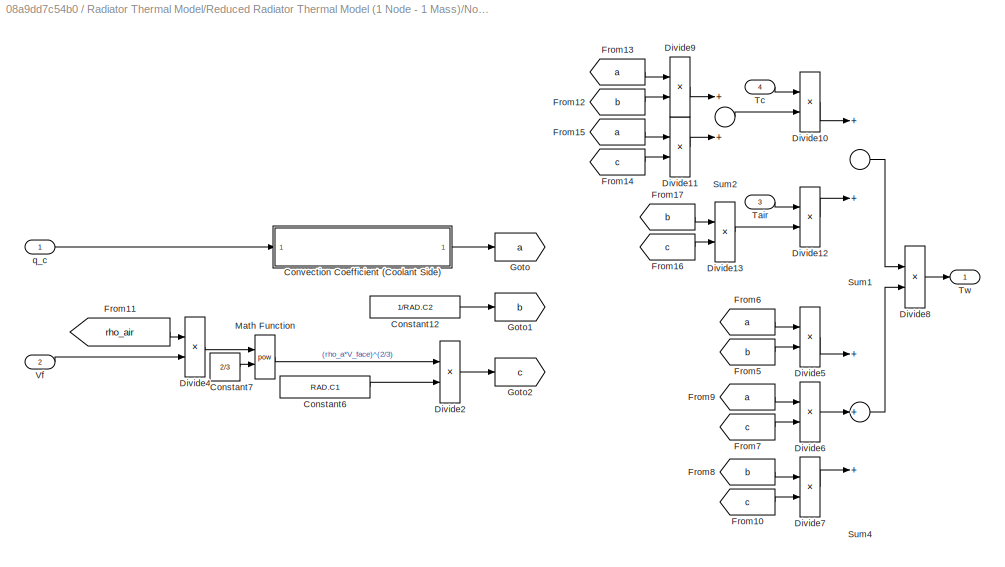
BLOCK [SubSystem] Radiator Thermal Model/Reduced Radiator Thermal Model (1 Node - 1 Mass)/Node 1/Singular Perturbation Model
  Ports = [4, 1]
  RequestExecContextInheritance = off
  Variant = off
BLOCK [Constant] Radiator Thermal Model/Reduced Radiator Thermal Model (1 Node - 1 Mass)/Node 1/Singular Perturbation Model/Constant12
  Value = 1/RAD.C2
BLOCK [Constant] Radiator Thermal Model/Reduced Radiator Thermal Model (1 Node - 1 Mass)/Node 1/Singular Perturbation Model/Constant6
  Value = RAD.C1
BLOCK [Constant] Radiator Thermal Model/Reduced Radiator Thermal Model (1 Node - 1 Mass)/Node 1/Singular Perturbation Model/Constant7
  Value = 2/3
BLOCK [SubSystem] Radiator Thermal Model/Reduced Radiator Thermal Model (1 Node - 1 Mass)/Node 1/Singular Perturbation Model/Convection Coefficient (Coolant Side)
  Ports = [1, 1]
  RequestExecContextInheritance = off
  Variant = off
BLOCK [Outport] Radiator Thermal Model/Reduced Radiator Thermal Model (1 Node - 1 Mass)/Node 1/Singular Perturbation Model/Convection Coefficient (Coolant Side)/C_conv
  IconDisplay = Port number
BLOCK [Constant] Radiator Thermal Model/Reduced Radiator Thermal Model (1 Node - 1 Mass)/Node 1/Singular Perturbation Model/Convection Coefficient (Coolant Side)/Constant1
  Value = RAD.beta
BLOCK [Constant] Radiator Thermal Model/Reduced Radiator Thermal Model (1 Node - 1 Mass)/Node 1/Singular Perturbation Model/Convection Coefficient (Coolant Side)/Constant2
  Value = 1/3
BLOCK [Constant] Radiator Thermal Model/Reduced Radiator Thermal Model (1 Node - 1 Mass)/Node 1/Singular Perturbation Model/Convection Coefficient (Coolant Side)/Constant3
  Value = RAD.beta
BLOCK [Constant] Radiator Thermal Model/Reduced Radiator Thermal Model (1 Node - 1 Mass)/Node 1/Singular Perturbation Model/Convection Coefficient (Coolant Side)/Constant4
  Value = RAD.C3
BLOCK [Product] Radiator Thermal Model/Reduced Radiator Thermal Model (1 Node - 1 Mass)/Node 1/Singular Perturbation Model/Convection Coefficient (Coolant Side)/Divide
  InputSameDT = off
  Inputs = **/
  OutDataTypeStr = Inherit: Inherit via internal rule
  Ports = [3, 1]
  RndMeth = Floor
  SaturateOnIntegerOverflow = off
BLOCK [Product] Radiator Thermal Model/Reduced Radiator Thermal Model (1 Node - 1 Mass)/Node 1/Singular Perturbation Model/Convection Coefficient (Coolant Side)/Divide1
  InputSameDT = off
  Inputs = **
  OutDataTypeStr = Inherit: Inherit via internal rule
  Ports = [2, 1]
  RndMeth = Floor
  SaturateOnIntegerOverflow = off
BLOCK [Product] Radiator Thermal Model/Reduced Radiator Thermal Model (1 Node - 1 Mass)/Node 1/Singular Perturbation Model/Convection Coefficient (Coolant Side)/Divide4
  InputSameDT = off
  Inputs = **/
  OutDataTypeStr = Inherit: Inherit via internal rule
  Ports = [3, 1]
  RndMeth = Floor
  SaturateOnIntegerOverflow = off
BLOCK [From] Radiator Thermal Model/Reduced Radiator Thermal Model (1 Node - 1 Mass)/Node 1/Singular Perturbation Model/Convection Coefficient (Coolant Side)/From1
  GotoTag = rho_cool
  TagVisibility = scoped
BLOCK [From] Radiator Thermal Model/Reduced Radiator Thermal Model (1 Node - 1 Mass)/Node 1/Singular Perturbation Model/Convection Coefficient (Coolant Side)/From2
  GotoTag = Pr_cool
  TagVisibility = scoped
BLOCK [From] Radiator Thermal Model/Reduced Radiator Thermal Model (1 Node - 1 Mass)/Node 1/Singular Perturbation Model/Convection Coefficient (Coolant Side)/From3
  GotoTag = k_cool
  TagVisibility = scoped
BLOCK [From] Radiator Thermal Model/Reduced Radiator Thermal Model (1 Node - 1 Mass)/Node 1/Singular Perturbation Model/Convection Coefficient (Coolant Side)/From4
  GotoTag = mu_cool
  TagVisibility = scoped
BLOCK [Math] Radiator Thermal Model/Reduced Radiator Thermal Model (1 Node - 1 Mass)/Node 1/Singular Perturbation Model/Convection Coefficient (Coolant Side)/Math Function1
  Operator = pow
  Ports = [2, 1]
BLOCK [Math] Radiator Thermal Model/Reduced Radiator Thermal Model (1 Node - 1 Mass)/Node 1/Singular Perturbation Model/Convection Coefficient (Coolant Side)/Math Function2
  Operator = pow
  Ports = [2, 1]
BLOCK [Math] Radiator Thermal Model/Reduced Radiator Thermal Model (1 Node - 1 Mass)/Node 1/Singular Perturbation Model/Convection Coefficient (Coolant Side)/Math Function3
  Operator = pow
  Ports = [2, 1]
BLOCK [Inport] Radiator Thermal Model/Reduced Radiator Thermal Model (1 Node - 1 Mass)/Node 1/Singular Perturbation Model/Convection Coefficient (Coolant Side)/q_c
  IconDisplay = Port number
BLOCK [Product] Radiator Thermal Model/Reduced Radiator Thermal Model (1 Node - 1 Mass)/Node 1/Singular Perturbation Model/Divide10
  InputSameDT = off
  Inputs = **
  OutDataTypeStr = Inherit: Inherit via internal rule
  Ports = [2, 1]
  RndMeth = Floor
  SaturateOnIntegerOverflow = off
BLOCK [Product] Radiator Thermal Model/Reduced Radiator Thermal Model (1 Node - 1 Mass)/Node 1/Singular Perturbation Model/Divide11
  InputSameDT = off
  Inputs = **
  OutDataTypeStr = Inherit: Inherit via internal rule
  Ports = [2, 1]
  RndMeth = Floor
  SaturateOnIntegerOverflow = off
BLOCK [Product] Radiator Thermal Model/Reduced Radiator Thermal Model (1 Node - 1 Mass)/Node 1/Singular Perturbation Model/Divide12
  InputSameDT = off
  Inputs = **
  OutDataTypeStr = Inherit: Inherit via internal rule
  Ports = [2, 1]
  RndMeth = Floor
  SaturateOnIntegerOverflow = off
BLOCK [Product] Radiator Thermal Model/Reduced Radiator Thermal Model (1 Node - 1 Mass)/Node 1/Singular Perturbation Model/Divide13
  InputSameDT = off
  Inputs = **
  OutDataTypeStr = Inherit: Inherit via internal rule
  Ports = [2, 1]
  RndMeth = Floor
  SaturateOnIntegerOverflow = off
BLOCK [Product] Radiator Thermal Model/Reduced Radiator Thermal Model (1 Node - 1 Mass)/Node 1/Singular Perturbation Model/Divide2
  InputSameDT = off
  Inputs = */
  OutDataTypeStr = Inherit: Inherit via internal rule
  Ports = [2, 1]
  RndMeth = Floor
  SaturateOnIntegerOverflow = off
BLOCK [Product] Radiator Thermal Model/Reduced Radiator Thermal Model (1 Node - 1 Mass)/Node 1/Singular Perturbation Model/Divide4
  InputSameDT = off
  Inputs = **
  OutDataTypeStr = Inherit: Inherit via internal rule
  Ports = [2, 1]
  RndMeth = Floor
  SaturateOnIntegerOverflow = off
BLOCK [Product] Radiator Thermal Model/Reduced Radiator Thermal Model (1 Node - 1 Mass)/Node 1/Singular Perturbation Model/Divide5
  InputSameDT = off
  Inputs = **
  OutDataTypeStr = Inherit: Inherit via internal rule
  Ports = [2, 1]
  RndMeth = Floor
  SaturateOnIntegerOverflow = off
BLOCK [Product] Radiator Thermal Model/Reduced Radiator Thermal Model (1 Node - 1 Mass)/Node 1/Singular Perturbation Model/Divide6
  InputSameDT = off
  Inputs = **
  OutDataTypeStr = Inherit: Inherit via internal rule
  Ports = [2, 1]
  RndMeth = Floor
  SaturateOnIntegerOverflow = off
BLOCK [Product] Radiator Thermal Model/Reduced Radiator Thermal Model (1 Node - 1 Mass)/Node 1/Singular Perturbation Model/Divide7
  InputSameDT = off
  Inputs = **
  OutDataTypeStr = Inherit: Inherit via internal rule
  Ports = [2, 1]
  RndMeth = Floor
  SaturateOnIntegerOverflow = off
BLOCK [Product] Radiator Thermal Model/Reduced Radiator Thermal Model (1 Node - 1 Mass)/Node 1/Singular Perturbation Model/Divide8
  InputSameDT = off
  Inputs = */
  OutDataTypeStr = Inherit: Inherit via internal rule
  Ports = [2, 1]
  RndMeth = Floor
  SaturateOnIntegerOverflow = off
BLOCK [Product] Radiator Thermal Model/Reduced Radiator Thermal Model (1 Node - 1 Mass)/Node 1/Singular Perturbation Model/Divide9
  InputSameDT = off
  Inputs = **
  OutDataTypeStr = Inherit: Inherit via internal rule
  Ports = [2, 1]
  RndMeth = Floor
  SaturateOnIntegerOverflow = off
BLOCK [From] Radiator Thermal Model/Reduced Radiator Thermal Model (1 Node - 1 Mass)/Node 1/Singular Perturbation Model/From10
  GotoTag = c
BLOCK [From] Radiator Thermal Model/Reduced Radiator Thermal Model (1 Node - 1 Mass)/Node 1/Singular Perturbation Model/From11
  GotoTag = rho_air
  TagVisibility = scoped
BLOCK [From] Radiator Thermal Model/Reduced Radiator Thermal Model (1 Node - 1 Mass)/Node 1/Singular Perturbation Model/From12
  GotoTag = b
BLOCK [From] Radiator Thermal Model/Reduced Radiator Thermal Model (1 Node - 1 Mass)/Node 1/Singular Perturbation Model/From13
  GotoTag = a
BLOCK [From] Radiator Thermal Model/Reduced Radiator Thermal Model (1 Node - 1 Mass)/Node 1/Singular Perturbation Model/From14
  GotoTag = c
BLOCK [From] Radiator Thermal Model/Reduced Radiator Thermal Model (1 Node - 1 Mass)/Node 1/Singular Perturbation Model/From15
  GotoTag = a
BLOCK [From] Radiator Thermal Model/Reduced Radiator Thermal Model (1 Node - 1 Mass)/Node 1/Singular Perturbation Model/From16
  GotoTag = c
BLOCK [From] Radiator Thermal Model/Reduced Radiator Thermal Model (1 Node - 1 Mass)/Node 1/Singular Perturbation Model/From17
  GotoTag = b
BLOCK [From] Radiator Thermal Model/Reduced Radiator Thermal Model (1 Node - 1 Mass)/Node 1/Singular Perturbation Model/From5
  GotoTag = b
BLOCK [From] Radiator Thermal Model/Reduced Radiator Thermal Model (1 Node - 1 Mass)/Node 1/Singular Perturbation Model/From6
  GotoTag = a
BLOCK [From] Radiator Thermal Model/Reduced Radiator Thermal Model (1 Node - 1 Mass)/Node 1/Singular Perturbation Model/From7
  GotoTag = c
BLOCK [From] Radiator Thermal Model/Reduced Radiator Thermal Model (1 Node - 1 Mass)/Node 1/Singular Perturbation Model/From8
  GotoTag = b
BLOCK [From] Radiator Thermal Model/Reduced Radiator Thermal Model (1 Node - 1 Mass)/Node 1/Singular Perturbation Model/From9
  GotoTag = a
BLOCK [Goto] Radiator Thermal Model/Reduced Radiator Thermal Model (1 Node - 1 Mass)/Node 1/Singular Perturbation Model/Goto
  GotoTag = a
BLOCK [Goto] Radiator Thermal Model/Reduced Radiator Thermal Model (1 Node - 1 Mass)/Node 1/Singular Perturbation Model/Goto1
  GotoTag = b
BLOCK [Goto] Radiator Thermal Model/Reduced Radiator Thermal Model (1 Node - 1 Mass)/Node 1/Singular Perturbation Model/Goto2
  GotoTag = c
BLOCK [Math] Radiator Thermal Model/Reduced Radiator Thermal Model (1 Node - 1 Mass)/Node 1/Singular Perturbation Model/Math Function
  Operator = pow
  Ports = [2, 1]
BLOCK [Sum] Radiator Thermal Model/Reduced Radiator Thermal Model (1 Node - 1 Mass)/Node 1/Singular Perturbation Model/Sum1
  InputSameDT = off
  OutDataTypeStr = Inherit: Inherit via internal rule
  Ports = [2, 1]
  SaturateOnIntegerOverflow = off
BLOCK [Sum] Radiator Thermal Model/Reduced Radiator Thermal Model (1 Node - 1 Mass)/Node 1/Singular Perturbation Model/Sum2
  InputSameDT = off
  OutDataTypeStr = Inherit: Inherit via internal rule
  Ports = [2, 1]
  SaturateOnIntegerOverflow = off
BLOCK [Sum] Radiator Thermal Model/Reduced Radiator Thermal Model (1 Node - 1 Mass)/Node 1/Singular Perturbation Model/Sum4
  InputSameDT = off
  Inputs = +++
  OutDataTypeStr = Inherit: Inherit via internal rule
  Ports = [3, 1]
  SaturateOnIntegerOverflow = off
BLOCK [Inport] Radiator Thermal Model/Reduced Radiator Thermal Model (1 Node - 1 Mass)/Node 1/Singular Perturbation Model/Tair
  IconDisplay = Port number
  Port = 3
BLOCK [Inport] Radiator Thermal Model/Reduced Radiator Thermal Model (1 Node - 1 Mass)/Node 1/Singular Perturbation Model/Tc
  IconDisplay = Port number
  Port = 4
BLOCK [Outport] Radiator Thermal Model/Reduced Radiator Thermal Model (1 Node - 1 Mass)/Node 1/Singular Perturbation Model/Tw
  IconDisplay = Port number
BLOCK [Inport] Radiator Thermal Model/Reduced Radiator Thermal Model (1 Node - 1 Mass)/Node 1/Singular Perturbation Model/Vf
  IconDisplay = Port number
  Port = 2
BLOCK [Inport] Radiator Thermal Model/Reduced Radiator Thermal Model (1 Node - 1 Mass)/Node 1/Singular Perturbation Model/q_c
  IconDisplay = Port number
BLOCK [Sum] Radiator Thermal Model/Reduced Radiator Thermal Model (1 Node - 1 Mass)/Node 1/Sum
  InputSameDT = off
  Inputs = +-
  OutDataTypeStr = Inherit: Inherit via internal rule
  Ports = [2, 1]
  SaturateOnIntegerOverflow = off
BLOCK [Sum] Radiator Thermal Model/Reduced Radiator Thermal Model (1 Node - 1 Mass)/Node 1/Sum1
  InputSameDT = off
  Inputs = +++
  OutDataTypeStr = Inherit: Inherit via internal rule
  Ports = [3, 1]
  SaturateOnIntegerOverflow = off
BLOCK [Sum] Radiator Thermal Model/Reduced Radiator Thermal Model (1 Node - 1 Mass)/Node 1/Sum3
  InputSameDT = off
  Inputs = +-
  OutDataTypeStr = Inherit: Inherit via internal rule
  Ports = [2, 1]
  SaturateOnIntegerOverflow = off
BLOCK [Sum] Radiator Thermal Model/Reduced Radiator Thermal Model (1 Node - 1 Mass)/Node 1/Sum4
  InputSameDT = off
  Inputs = +-
  OutDataTypeStr = Inherit: Inherit via internal rule
  Ports = [2, 1]
  SaturateOnIntegerOverflow = off
BLOCK [Inport] Radiator Thermal Model/Reduced Radiator Thermal Model (1 Node - 1 Mass)/Node 1/T_air
  IconDisplay = Port number
  Port = 3
BLOCK [Inport] Radiator Thermal Model/Reduced Radiator Thermal Model (1 Node - 1 Mass)/Node 1/T_c_in
  IconDisplay = Port number
BLOCK [Outport] Radiator Thermal Model/Reduced Radiator Thermal Model (1 Node - 1 Mass)/Node 1/Tc
  IconDisplay = Port number
BLOCK [Inport] Radiator Thermal Model/Reduced Radiator Thermal Model (1 Node - 1 Mass)/Node 1/Vf
  IconDisplay = Port number
  Port = 4
BLOCK [SubSystem] Radiator Thermal Model/Reduced Radiator Thermal Model (1 Node - 1 Mass)/Node 1/Wall Thermal Mass
  Ports = [0, 1]
  RequestExecContextInheritance = off
  Variant = off
BLOCK [Constant] Radiator Thermal Model/Reduced Radiator Thermal Model (1 Node - 1 Mass)/Node 1/Wall Thermal Mass/Constant1
  Value = RAD.St*( (RAD.dt - RAD.tt)*(RAD.tt - RAD.b) + pi/4*(RAD.dt^2 - RAD.b^2) )
  VectorParams1D = off
BLOCK [Constant] Radiator Thermal Model/Reduced Radiator Thermal Model (1 Node - 1 Mass)/Node 1/Wall Thermal Mass/Constant2
  Value = RAD.rho_metal
BLOCK [Constant] Radiator Thermal Model/Reduced Radiator Thermal Model (1 Node - 1 Mass)/Node 1/Wall Thermal Mass/Constant4
  Value = RAD.cp_metal
BLOCK [Outport] Radiator Thermal Model/Reduced Radiator Thermal Model (1 Node - 1 Mass)/Node 1/Wall Thermal Mass/Cw
  IconDisplay = Port number
BLOCK [Product] Radiator Thermal Model/Reduced Radiator Thermal Model (1 Node - 1 Mass)/Node 1/Wall Thermal Mass/Divide4
  InputSameDT = off
  Inputs = ***
  OutDataTypeStr = Inherit: Inherit via internal rule
  Ports = [3, 1]
  RndMeth = Floor
  SaturateOnIntegerOverflow = off
BLOCK [Inport] Radiator Thermal Model/Reduced Radiator Thermal Model (1 Node - 1 Mass)/Node 1/q_c
  IconDisplay = Port number
  Port = 2
BLOCK [Outport] Radiator Thermal Model/Reduced Radiator Thermal Model (1 Node - 1 Mass)/Q_dot_RAD [W]
  IconDisplay = Port number
  Port = 2
BLOCK [Sum] Radiator Thermal Model/Reduced Radiator Thermal Model (1 Node - 1 Mass)/Sum3
  InputSameDT = off
  Inputs = +-
  OutDataTypeStr = Inherit: Inherit via internal rule
  Ports = [2, 1]
  SaturateOnIntegerOverflow = off
BLOCK [Inport] Radiator Thermal Model/Reduced Radiator Thermal Model (1 Node - 1 Mass)/T_air [K]
  IconDisplay = Port number
  Port = 3
BLOCK [Inport] Radiator Thermal Model/Reduced Radiator Thermal Model (1 Node - 1 Mass)/T_cool_in [K]
  IconDisplay = Port number
BLOCK [Outport] Radiator Thermal Model/Reduced Radiator Thermal Model (1 Node - 1 Mass)/T_cool_out [K]
  IconDisplay = Port number
BLOCK [Inport] Radiator Thermal Model/Reduced Radiator Thermal Model (1 Node - 1 Mass)/V_face [m//s]
  IconDisplay = Port number
  Port = 4
BLOCK [Inport] Radiator Thermal Model/Reduced Radiator Thermal Model (1 Node - 1 Mass)/q_cool_in [m^3//s]
  IconDisplay = Port number
  Port = 2
BLOCK [Inport] Radiator Thermal Model/T_air [K]
  IconDisplay = Port number
  Port = 3
BLOCK [Inport] Radiator Thermal Model/T_cool_in [K]
  IconDisplay = Port number
BLOCK [Outport] Radiator Thermal Model/T_cool_out [K]
  IconDisplay = Port number
BLOCK [Terminator] Radiator Thermal Model/Terminator
BLOCK [Inport] Radiator Thermal Model/V_face [m//s]
  IconDisplay = Port number
  Port = 4
BLOCK [Inport] Radiator Thermal Model/q_cool_in [m^3//s]
  IconDisplay = Port number
  Port = 2
BLOCK [Scope] Scope
  NumInputPorts = 1
  Ports = [1]
  ScopeSpecificationString = Simulink.scopes.TimeScopeBlockCfg('CurrentConfiguration', extmgr.ConfigurationSet(extmgr.Configuration('Core','General UI',true),extmgr.Configuration('Core','Source UI',true),extmgr.Configuration('Sources','WiredSimulink',true,'DataLoggingSaveFormat','StructureWithTime','DataLoggingDecimation','1','DataLoggingDecimateData',true),extmgr.Configuration('Visuals','Time Domain',true,'SerializedDisplays...<+1652ch>
BLOCK [Scope] Scope1
  NumInputPorts = 1
  Ports = [1]
  ScopeSpecificationString = Simulink.scopes.TimeScopeBlockCfg('CurrentConfiguration', extmgr.ConfigurationSet(extmgr.Configuration('Core','General UI',true),extmgr.Configuration('Core','Source UI',true),extmgr.Configuration('Sources','WiredSimulink',true,'DataLoggingVariableName','ScopeData1','DataLoggingSaveFormat','StructureWithTime','DataLoggingDecimation','1','DataLoggingDecimateData',true),extmgr.Configuration('Visuals'...<+1689ch>
BLOCK [Scope] Scope2
  NumInputPorts = 1
  Ports = [1]
  ScopeSpecificationString = C++SS(StrPVP('Location','[188, 390, 512, 629]'),StrPVP('Open','off'),MxPVP('AxesTitles',53,'struct(''axes1'',''%<SignalLabel>'')'),MxPVP('ScopeGraphics',56,'struct(''FigureColor'',''[0.5 0.5 0.5]'',''AxesColor'',''[0 0 0]'',''AxesTickColor'',''[1 1 1]'',''LineColors'',''[1 1 0;1 0 1;0 1 1;1 0 0;0 1 0;0 0 1]'',''LineStyles'',''-|-|-|-|-|-'',''LineWidths'',''[0.5 0.5 0.5 0.5 0.5 0.5]'',''MarkerStyle...<+272ch>
BLOCK [Scope] Scope3
  NumInputPorts = 1
  Ports = [1]
  ScopeSpecificationString = Simulink.scopes.TimeScopeBlockCfg('CurrentConfiguration', extmgr.ConfigurationSet(extmgr.Configuration('Core','General UI',true),extmgr.Configuration('Core','Source UI',true),extmgr.Configuration('Sources','WiredSimulink',true,'DataLoggingVariableName','ScopeData3','DataLoggingSaveFormat','StructureWithTime','DataLoggingDecimation','1','DataLoggingDecimateData',true),extmgr.Configuration('Visuals'...<+877ch>
BLOCK [ToWorkspace] To Workspace
  FixptAsFi = on
  MaxDataPoints = inf
  Ports = [1]
  SampleTime = -1
  Save2DSignal = 3-D array (concatenate along third dimension)
  VariableName = T_cool_out
BLOCK [ToWorkspace] To Workspace1
  FixptAsFi = on
  MaxDataPoints = inf
  Ports = [1]
  SampleTime = -1
  Save2DSignal = 3-D array (concatenate along third dimension)
  VariableName = T1
BLOCK [ToWorkspace] To Workspace4
  FixptAsFi = on
  MaxDataPoints = inf
  Ports = [1]
  SampleTime = -1
  Save2DSignal = 3-D array (concatenate along third dimension)
  VariableName = t_sim
ANNOTATION EMRAX Motor Thermal Model: Inputs
ANNOTATION EMRAX Motor Thermal Model: Motor Thermal Model (BC3.X)
ANNOTATION EMRAX Motor Thermal Model: Outputs
ANNOTATION EMRAX Motor Thermal Model: Variables Passed Through Blocks
ANNOTATION EMRAX Motor Thermal Model/3-Mass Motor Thermal Model/Mass 1 : Stator Block: Energy Balance for Mass 1 (Inner Mass)
ANNOTATION EMRAX Motor Thermal Model/3-Mass Motor Thermal Model/Mass 2 :Rotor Block: Energy Balance for Mass 2 (Rotor Mass)
ANNOTATION EMRAX Motor Thermal Model/3-Mass Motor Thermal Model/Mass 3 : Motor Mounting: Energy Balance for Mass 2 (Outer Mass)
LINE 1-D Lookup Table1:1 -> EMRAX Motor Thermal Model:2
LINE 1-D Lookup Table2:1 -> Fcn3:1
LINE 1-D Lookup Table3:1 -> Mux1:1
LINE 1-D Lookup Table4:1 -> Mux:1
LINE 1-D Lookup Table:1 -> EMRAX Motor Thermal Model:1
NET Clock:1 -> 1-D Lookup Table1:1, 1-D Lookup Table2:1, 1-D Lookup Table3:1, 1-D Lookup Table4:1, 1-D Lookup Table:1, To Workspace4:1
LINE Constant1:1 -> EMRAX Motor Thermal Model:3
LINE EMRAX Motor Thermal Model/3-Mass Motor Thermal Model/From11:1 -> EMRAX Motor Thermal Model/3-Mass Motor Thermal Model/Mass 1 : Stator Block:3
LINE EMRAX Motor Thermal Model/3-Mass Motor Thermal Model/From1:1 -> EMRAX Motor Thermal Model/3-Mass Motor Thermal Model/Mass 1 : Stator Block:4
NET EMRAX Motor Thermal Model/3-Mass Motor Thermal Model/From4:1 -> EMRAX Motor Thermal Model/3-Mass Motor Thermal Model/Mass 1 : Stator Block:1, EMRAX Motor Thermal Model/3-Mass Motor Thermal Model/Mass 2 :Rotor Block:1
LINE EMRAX Motor Thermal Model/3-Mass Motor Thermal Model/Mass 1 : Stator Block/From2:1 -> EMRAX Motor Thermal Model/3-Mass Motor Thermal Model/Mass 1 : Stator Block/Product1:2
LINE EMRAX Motor Thermal Model/3-Mass Motor Thermal Model/Mass 1 : Stator Block/Gain1:1 -> EMRAX Motor Thermal Model/3-Mass Motor Thermal Model/Mass 1 : Stator Block/Sum3:1
NET EMRAX Motor Thermal Model/3-Mass Motor Thermal Model/Mass 1 : Stator Block/Gain2:1 -> EMRAX Motor Thermal Model/3-Mass Motor Thermal Model/Mass 1 : Stator Block/Product1:1, EMRAX Motor Thermal Model/3-Mass Motor Thermal Model/Mass 1 : Stator Block/Sum3:3
LINE EMRAX Motor Thermal Model/3-Mass Motor Thermal Model/Mass 1 : Stator Block/Gain5:1 -> EMRAX Motor Thermal Model/3-Mass Motor Thermal Model/Mass 1 : Stator Block/Sum3:2
LINE EMRAX Motor Thermal Model/3-Mass Motor Thermal Model/Mass 1 : Stator Block/Gain:1 -> EMRAX Motor Thermal Model/3-Mass Motor Thermal Model/Mass 1 : Stator Block/Integrator:1
NET EMRAX Motor Thermal Model/3-Mass Motor Thermal Model/Mass 1 : Stator Block/Integrator:1 -> EMRAX Motor Thermal Model/3-Mass Motor Thermal Model/Mass 1 : Stator Block/Sum1:1, EMRAX Motor Thermal Model/3-Mass Motor Thermal Model/Mass 1 : Stator Block/Sum2:1, EMRAX Motor Thermal Model/3-Mass Motor Thermal Model/Mass 1 : Stator Block/T1 [K]:1
LINE EMRAX Motor Thermal Model/3-Mass Motor Thermal Model/Mass 1 : Stator Block/Product1:1 -> EMRAX Motor Thermal Model/3-Mass Motor Thermal Model/Mass 1 : Stator Block/Sum5:2
LINE EMRAX Motor Thermal Model/3-Mass Motor Thermal Model/Mass 1 : Stator Block/Q_dot_heat [W]:1 -> EMRAX Motor Thermal Model/3-Mass Motor Thermal Model/Mass 1 : Stator Block/Gain1:1
LINE EMRAX Motor Thermal Model/3-Mass Motor Thermal Model/Mass 1 : Stator Block/Sum1:1 -> EMRAX Motor Thermal Model/3-Mass Motor Thermal Model/Mass 1 : Stator Block/Gain5:1
LINE EMRAX Motor Thermal Model/3-Mass Motor Thermal Model/Mass 1 : Stator Block/Sum2:1 -> EMRAX Motor Thermal Model/3-Mass Motor Thermal Model/Mass 1 : Stator Block/Gain2:1
LINE EMRAX Motor Thermal Model/3-Mass Motor Thermal Model/Mass 1 : Stator Block/Sum3:1 -> EMRAX Motor Thermal Model/3-Mass Motor Thermal Model/Mass 1 : Stator Block/Gain:1
LINE EMRAX Motor Thermal Model/3-Mass Motor Thermal Model/Mass 1 : Stator Block/Sum5:1 -> EMRAX Motor Thermal Model/3-Mass Motor Thermal Model/Mass 1 : Stator Block/T_cool_out:1
LINE EMRAX Motor Thermal Model/3-Mass Motor Thermal Model/Mass 1 : Stator Block/T2 [K]:1 -> EMRAX Motor Thermal Model/3-Mass Motor Thermal Model/Mass 1 : Stator Block/Sum1:2
NET EMRAX Motor Thermal Model/3-Mass Motor Thermal Model/Mass 1 : Stator Block/T_cool_in [K]:1 -> EMRAX Motor Thermal Model/3-Mass Motor Thermal Model/Mass 1 : Stator Block/Sum2:2, EMRAX Motor Thermal Model/3-Mass Motor Thermal Model/Mass 1 : Stator Block/Sum5:1
LINE EMRAX Motor Thermal Model/3-Mass Motor Thermal Model/Mass 1 : Stator Block/m_dot_cool [kg//s]:1 -> EMRAX Motor Thermal Model/3-Mass Motor Thermal Model/Mass 1 : Stator Block/Product1:3
NET EMRAX Motor Thermal Model/3-Mass Motor Thermal Model/Mass 1 : Stator Block:1 -> EMRAX Motor Thermal Model/3-Mass Motor Thermal Model/Mass 2 :Rotor Block:2, EMRAX Motor Thermal Model/3-Mass Motor Thermal Model/T1 [K]:1
LINE EMRAX Motor Thermal Model/3-Mass Motor Thermal Model/Mass 1 : Stator Block:2 -> EMRAX Motor Thermal Model/3-Mass Motor Thermal Model/T_cool_out [K]:1
LINE EMRAX Motor Thermal Model/3-Mass Motor Thermal Model/Mass 2 :Rotor Block/From1:1 -> EMRAX Motor Thermal Model/3-Mass Motor Thermal Model/Mass 2 :Rotor Block/Sum2:2
LINE EMRAX Motor Thermal Model/3-Mass Motor Thermal Model/Mass 2 :Rotor Block/Gain1:1 -> EMRAX Motor Thermal Model/3-Mass Motor Thermal Model/Mass 2 :Rotor Block/Sum3:1
LINE EMRAX Motor Thermal Model/3-Mass Motor Thermal Model/Mass 2 :Rotor Block/Gain2:1 -> EMRAX Motor Thermal Model/3-Mass Motor Thermal Model/Mass 2 :Rotor Block/Sum3:3
LINE EMRAX Motor Thermal Model/3-Mass Motor Thermal Model/Mass 2 :Rotor Block/Gain3:1 -> EMRAX Motor Thermal Model/3-Mass Motor Thermal Model/Mass 2 :Rotor Block/Sum3:4
LINE EMRAX Motor Thermal Model/3-Mass Motor Thermal Model/Mass 2 :Rotor Block/Gain5:1 -> EMRAX Motor Thermal Model/3-Mass Motor Thermal Model/Mass 2 :Rotor Block/Sum3:2
LINE EMRAX Motor Thermal Model/3-Mass Motor Thermal Model/Mass 2 :Rotor Block/Gain:1 -> EMRAX Motor Thermal Model/3-Mass Motor Thermal Model/Mass 2 :Rotor Block/Integrator:1
NET EMRAX Motor Thermal Model/3-Mass Motor Thermal Model/Mass 2 :Rotor Block/Integrator:1 -> EMRAX Motor Thermal Model/3-Mass Motor Thermal Model/Mass 2 :Rotor Block/Sum1:2, EMRAX Motor Thermal Model/3-Mass Motor Thermal Model/Mass 2 :Rotor Block/Sum2:1, EMRAX Motor Thermal Model/3-Mass Motor Thermal Model/Mass 2 :Rotor Block/Sum4:1, EMRAX Motor Thermal Model/3-Mass Motor Thermal Model/Mass 2 :Rotor Block/T2 [K]:1
LINE EMRAX Motor Thermal Model/3-Mass Motor Thermal Model/Mass 2 :Rotor Block/Q_dot_heat [W]:1 -> EMRAX Motor Thermal Model/3-Mass Motor Thermal Model/Mass 2 :Rotor Block/Gain1:1
LINE EMRAX Motor Thermal Model/3-Mass Motor Thermal Model/Mass 2 :Rotor Block/Sum1:1 -> EMRAX Motor Thermal Model/3-Mass Motor Thermal Model/Mass 2 :Rotor Block/Gain5:1
LINE EMRAX Motor Thermal Model/3-Mass Motor Thermal Model/Mass 2 :Rotor Block/Sum2:1 -> EMRAX Motor Thermal Model/3-Mass Motor Thermal Model/Mass 2 :Rotor Block/Gain2:1
LINE EMRAX Motor Thermal Model/3-Mass Motor Thermal Model/Mass 2 :Rotor Block/Sum3:1 -> EMRAX Motor Thermal Model/3-Mass Motor Thermal Model/Mass 2 :Rotor Block/Gain:1
LINE EMRAX Motor Thermal Model/3-Mass Motor Thermal Model/Mass 2 :Rotor Block/Sum4:1 -> EMRAX Motor Thermal Model/3-Mass Motor Thermal Model/Mass 2 :Rotor Block/Gain3:1
LINE EMRAX Motor Thermal Model/3-Mass Motor Thermal Model/Mass 2 :Rotor Block/T1:1 -> EMRAX Motor Thermal Model/3-Mass Motor Thermal Model/Mass 2 :Rotor Block/Sum1:1
LINE EMRAX Motor Thermal Model/3-Mass Motor Thermal Model/Mass 2 :Rotor Block/T3:1 -> EMRAX Motor Thermal Model/3-Mass Motor Thermal Model/Mass 2 :Rotor Block/Sum4:2
NET EMRAX Motor Thermal Model/3-Mass Motor Thermal Model/Mass 2 :Rotor Block:1 -> EMRAX Motor Thermal Model/3-Mass Motor Thermal Model/Mass 1 : Stator Block:2, EMRAX Motor Thermal Model/3-Mass Motor Thermal Model/Mass 3 : Motor Mounting:1, EMRAX Motor Thermal Model/3-Mass Motor Thermal Model/T2 [K]:1
LINE EMRAX Motor Thermal Model/3-Mass Motor Thermal Model/Mass 3 : Motor Mounting/From1:1 -> EMRAX Motor Thermal Model/3-Mass Motor Thermal Model/Mass 3 : Motor Mounting/Sum2:2
LINE EMRAX Motor Thermal Model/3-Mass Motor Thermal Model/Mass 3 : Motor Mounting/Gain2:1 -> EMRAX Motor Thermal Model/3-Mass Motor Thermal Model/Mass 3 : Motor Mounting/Sum3:2
LINE EMRAX Motor Thermal Model/3-Mass Motor Thermal Model/Mass 3 : Motor Mounting/Gain5:1 -> EMRAX Motor Thermal Model/3-Mass Motor Thermal Model/Mass 3 : Motor Mounting/Sum3:1
LINE EMRAX Motor Thermal Model/3-Mass Motor Thermal Model/Mass 3 : Motor Mounting/Gain:1 -> EMRAX Motor Thermal Model/3-Mass Motor Thermal Model/Mass 3 : Motor Mounting/Integrator:1
NET EMRAX Motor Thermal Model/3-Mass Motor Thermal Model/Mass 3 : Motor Mounting/Integrator:1 -> EMRAX Motor Thermal Model/3-Mass Motor Thermal Model/Mass 3 : Motor Mounting/Sum1:2, EMRAX Motor Thermal Model/3-Mass Motor Thermal Model/Mass 3 : Motor Mounting/Sum2:1, EMRAX Motor Thermal Model/3-Mass Motor Thermal Model/Mass 3 : Motor Mounting/T3 [K]:1
LINE EMRAX Motor Thermal Model/3-Mass Motor Thermal Model/Mass 3 : Motor Mounting/Sum1:1 -> EMRAX Motor Thermal Model/3-Mass Motor Thermal Model/Mass 3 : Motor Mounting/Gain5:1
LINE EMRAX Motor Thermal Model/3-Mass Motor Thermal Model/Mass 3 : Motor Mounting/Sum2:1 -> EMRAX Motor Thermal Model/3-Mass Motor Thermal Model/Mass 3 : Motor Mounting/Gain2:1
LINE EMRAX Motor Thermal Model/3-Mass Motor Thermal Model/Mass 3 : Motor Mounting/Sum3:1 -> EMRAX Motor Thermal Model/3-Mass Motor Thermal Model/Mass 3 : Motor Mounting/Gain:1
LINE EMRAX Motor Thermal Model/3-Mass Motor Thermal Model/Mass 3 : Motor Mounting/T2 :1 -> EMRAX Motor Thermal Model/3-Mass Motor Thermal Model/Mass 3 : Motor Mounting/Sum1:1
NET EMRAX Motor Thermal Model/3-Mass Motor Thermal Model/Mass 3 : Motor Mounting:1 -> EMRAX Motor Thermal Model/3-Mass Motor Thermal Model/Mass 2 :Rotor Block:3, EMRAX Motor Thermal Model/3-Mass Motor Thermal Model/T3 [K]:1
LINE EMRAX Motor Thermal Model/3-Mass Motor Thermal Model:1 -> EMRAX Motor Thermal Model/Goto5:1
LINE EMRAX Motor Thermal Model/3-Mass Motor Thermal Model:2 -> EMRAX Motor Thermal Model/Goto2:1
LINE EMRAX Motor Thermal Model/3-Mass Motor Thermal Model:3 -> EMRAX Motor Thermal Model/Goto7:1
LINE EMRAX Motor Thermal Model/3-Mass Motor Thermal Model:4 -> EMRAX Motor Thermal Model/Goto4:1
NET EMRAX Motor Thermal Model/Coolant Properties/Density - Coolant:1 -> EMRAX Motor Thermal Model/Coolant Properties/Goto:1, EMRAX Motor Thermal Model/Coolant Properties/rho_cool [kg//m^3]:1
NET EMRAX Motor Thermal Model/Coolant Properties/Density - Glycol:1 -> EMRAX Motor Thermal Model/Coolant Properties/Goto1:1, EMRAX Motor Thermal Model/Coolant Properties/Mux:2
LINE EMRAX Motor Thermal Model/Coolant Properties/Density - Water:1 -> EMRAX Motor Thermal Model/Coolant Properties/Mux:1
LINE EMRAX Motor Thermal Model/Coolant Properties/Divide:1 -> EMRAX Motor Thermal Model/Coolant Properties/Pr_cool [-]:1
NET EMRAX Motor Thermal Model/Coolant Properties/Dynamic Viscosity - Coolant:1 -> EMRAX Motor Thermal Model/Coolant Properties/Goto4:1, EMRAX Motor Thermal Model/Coolant Properties/mu_cool [N-s//m^2]:1
LINE EMRAX Motor Thermal Model/Coolant Properties/From1:1 -> EMRAX Motor Thermal Model/Coolant Properties/Mux3:2
LINE EMRAX Motor Thermal Model/Coolant Properties/From2:1 -> EMRAX Motor Thermal Model/Coolant Properties/Divide:1
LINE EMRAX Motor Thermal Model/Coolant Properties/From3:1 -> EMRAX Motor Thermal Model/Coolant Properties/Divide:2
LINE EMRAX Motor Thermal Model/Coolant Properties/From4:1 -> EMRAX Motor Thermal Model/Coolant Properties/Divide:3
LINE EMRAX Motor Thermal Model/Coolant Properties/From:1 -> EMRAX Motor Thermal Model/Coolant Properties/Mux3:1
NET EMRAX Motor Thermal Model/Coolant Properties/Gain1:1 -> EMRAX Motor Thermal Model/Coolant Properties/Goto3:1, EMRAX Motor Thermal Model/Coolant Properties/cp_cool [J//kg-K]:1
LINE EMRAX Motor Thermal Model/Coolant Properties/Interaction Parameter:1 -> EMRAX Motor Thermal Model/Coolant Properties/Mux2:3
LINE EMRAX Motor Thermal Model/Coolant Properties/Mux1:1 -> EMRAX Motor Thermal Model/Coolant Properties/Specific Heat - Coolant:1
LINE EMRAX Motor Thermal Model/Coolant Properties/Mux2:1 -> EMRAX Motor Thermal Model/Coolant Properties/Dynamic Viscosity - Coolant:1
NET EMRAX Motor Thermal Model/Coolant Properties/Mux3:1 -> EMRAX Motor Thermal Model/Coolant Properties/s1:1, EMRAX Motor Thermal Model/Coolant Properties/s2:1
LINE EMRAX Motor Thermal Model/Coolant Properties/Mux4:1 -> EMRAX Motor Thermal Model/Coolant Properties/Thermal Conductivity - Coolant:1
LINE EMRAX Motor Thermal Model/Coolant Properties/Mux:1 -> EMRAX Motor Thermal Model/Coolant Properties/Density - Coolant:1
LINE EMRAX Motor Thermal Model/Coolant Properties/Specific Heat - Coolant:1 -> EMRAX Motor Thermal Model/Coolant Properties/Gain1:1
LINE EMRAX Motor Thermal Model/Coolant Properties/Specific Heat - Glycol:1 -> EMRAX Motor Thermal Model/Coolant Properties/Mux1:2
LINE EMRAX Motor Thermal Model/Coolant Properties/Specific Heat - Water:1 -> EMRAX Motor Thermal Model/Coolant Properties/Mux1:1
NET EMRAX Motor Thermal Model/Coolant Properties/T_cool [K]:1 -> EMRAX Motor Thermal Model/Coolant Properties/Density - Glycol:1, EMRAX Motor Thermal Model/Coolant Properties/Density - Water:1, EMRAX Motor Thermal Model/Coolant Properties/Interaction Parameter:1, EMRAX Motor Thermal Model/Coolant Properties/Specific Heat - Glycol:1, EMRAX Motor Thermal Model/Coolant Properties/Specific Heat - Water:1, EMRAX Motor Thermal Model/Coolant Properties/Thermal Conductivity - Glycol:1, EMRAX Motor Thermal Model/Coolant Properties/Thermal Conductivity - Water:1, EMRAX Motor Thermal Model/Coolant Properties/Viscosity - Glycol:1, EMRAX Motor Thermal Model/Coolant Properties/Viscosity - Water:1
NET EMRAX Motor Thermal Model/Coolant Properties/Thermal Conductivity - Coolant:1 -> EMRAX Motor Thermal Model/Coolant Properties/Goto2:1, EMRAX Motor Thermal Model/Coolant Properties/k_cool [W//m-K]:1
LINE EMRAX Motor Thermal Model/Coolant Properties/Thermal Conductivity - Glycol:1 -> EMRAX Motor Thermal Model/Coolant Properties/Mux4:3
LINE EMRAX Motor Thermal Model/Coolant Properties/Thermal Conductivity - Water:1 -> EMRAX Motor Thermal Model/Coolant Properties/Mux4:4
LINE EMRAX Motor Thermal Model/Coolant Properties/Viscosity - Glycol:1 -> EMRAX Motor Thermal Model/Coolant Properties/Mux2:1
LINE EMRAX Motor Thermal Model/Coolant Properties/Viscosity - Water:1 -> EMRAX Motor Thermal Model/Coolant Properties/Mux2:2
LINE EMRAX Motor Thermal Model/Coolant Properties/s1:1 -> EMRAX Motor Thermal Model/Coolant Properties/Mux4:1
LINE EMRAX Motor Thermal Model/Coolant Properties/s2:1 -> EMRAX Motor Thermal Model/Coolant Properties/Mux4:2
LINE EMRAX Motor Thermal Model/Coolant Properties:1 -> EMRAX Motor Thermal Model/Goto3:1
LINE EMRAX Motor Thermal Model/Coolant Properties:2 -> EMRAX Motor Thermal Model/Goto1:1
LINE EMRAX Motor Thermal Model/Coolant Properties:3 -> EMRAX Motor Thermal Model/Terminator:1
LINE EMRAX Motor Thermal Model/Coolant Properties:4 -> EMRAX Motor Thermal Model/Terminator1:1
LINE EMRAX Motor Thermal Model/Coolant Properties:5 -> EMRAX Motor Thermal Model/Terminator2:1
LINE EMRAX Motor Thermal Model/From1:1 -> EMRAX Motor Thermal Model/Coolant Properties:1
LINE EMRAX Motor Thermal Model/Motor ON Flag [-]:1 -> EMRAX Motor Thermal Model/Parameter Definition:3
LINE EMRAX Motor Thermal Model/Motor Speed [rpm]:1 -> EMRAX Motor Thermal Model/Parameter Definition:1
LINE EMRAX Motor Thermal Model/Motor Torque [Nm]:1 -> EMRAX Motor Thermal Model/Parameter Definition:2
LINE EMRAX Motor Thermal Model/Parameter Definition/Constant1:1 -> EMRAX Motor Thermal Model/Parameter Definition/Goto2:1
LINE EMRAX Motor Thermal Model/Parameter Definition/Constant4:1 -> EMRAX Motor Thermal Model/Parameter Definition/Engine ON 1:3
LINE EMRAX Motor Thermal Model/Parameter Definition/Constant:1 -> EMRAX Motor Thermal Model/Parameter Definition/liters//min 2 m^3//s:1
LINE EMRAX Motor Thermal Model/Parameter Definition/Efficiency Map:1 -> EMRAX Motor Thermal Model/Parameter Definition/Fcn:1
LINE EMRAX Motor Thermal Model/Parameter Definition/Engine ON 1:1 -> EMRAX Motor Thermal Model/Parameter Definition/Goto4:1
LINE EMRAX Motor Thermal Model/Parameter Definition/Fcn:1 -> EMRAX Motor Thermal Model/Parameter Definition/Product1:3
LINE EMRAX Motor Thermal Model/Parameter Definition/From1:1 -> EMRAX Motor Thermal Model/Parameter Definition/Temp_mass_2  [K]:1
LINE EMRAX Motor Thermal Model/Parameter Definition/From2:1 -> EMRAX Motor Thermal Model/Parameter Definition/Product2:2
LINE EMRAX Motor Thermal Model/Parameter Definition/From3:1 -> EMRAX Motor Thermal Model/Parameter Definition/Temp_cool_MOT_out  [K]:1
LINE EMRAX Motor Thermal Model/Parameter Definition/From4:1 -> EMRAX Motor Thermal Model/Parameter Definition/Temp_mass_1  [K]:1
LINE EMRAX Motor Thermal Model/Parameter Definition/From5:1 -> EMRAX Motor Thermal Model/Parameter Definition/Temp_mass_3  [K]1:1
LINE EMRAX Motor Thermal Model/Parameter Definition/Motor ON Flag [-]:1 -> EMRAX Motor Thermal Model/Parameter Definition/Engine ON 1:2
NET EMRAX Motor Thermal Model/Parameter Definition/Motor Speed [rpm]:1 -> EMRAX Motor Thermal Model/Parameter Definition/Efficiency Map:2, EMRAX Motor Thermal Model/Parameter Definition/rpm 2 rad//s:1
NET EMRAX Motor Thermal Model/Parameter Definition/Motor Torque [Nm]:1 -> EMRAX Motor Thermal Model/Parameter Definition/Efficiency Map:1, EMRAX Motor Thermal Model/Parameter Definition/Product1:1
LINE EMRAX Motor Thermal Model/Parameter Definition/Product1:1 -> EMRAX Motor Thermal Model/Parameter Definition/Engine ON 1:1
LINE EMRAX Motor Thermal Model/Parameter Definition/Product2:1 -> EMRAX Motor Thermal Model/Parameter Definition/Goto1:1
LINE EMRAX Motor Thermal Model/Parameter Definition/Temp_cool_RAD_out [K]:1 -> EMRAX Motor Thermal Model/Parameter Definition/Goto6:1
LINE EMRAX Motor Thermal Model/Parameter Definition/liters//min 2 m^3//s:1 -> EMRAX Motor Thermal Model/Parameter Definition/Product2:1
LINE EMRAX Motor Thermal Model/Parameter Definition/rpm 2 rad//s:1 -> EMRAX Motor Thermal Model/Parameter Definition/Product1:2
LINE EMRAX Motor Thermal Model/Parameter Definition:1 -> EMRAX Motor Thermal Model/T_mass_1 [K]:1
LINE EMRAX Motor Thermal Model/Parameter Definition:2 -> EMRAX Motor Thermal Model/T_mass_2 [K]:1
LINE EMRAX Motor Thermal Model/Parameter Definition:3 -> EMRAX Motor Thermal Model/T_cool_MOT_out [K]:1
LINE EMRAX Motor Thermal Model/Parameter Definition:4 -> EMRAX Motor Thermal Model/T_mass_3 [K]1:1
LINE EMRAX Motor Thermal Model/Temp_cool_RAD_out [K]:1 -> EMRAX Motor Thermal Model/Parameter Definition:4
LINE EMRAX Motor Thermal Model:1 -> Fcn1:1
LINE EMRAX Motor Thermal Model:2 -> Fcn2:1
LINE EMRAX Motor Thermal Model:3 -> Fcn:1
LINE EMRAX Motor Thermal Model:4 -> Fcn4:1
LINE Fcn1:1 -> Mux1:2
LINE Fcn2:1 -> Scope2:1
LINE Fcn3:1 -> EMRAX Motor Thermal Model:4
LINE Fcn4:1 -> Scope3:1
LINE Fcn:1 -> Mux:2
NET Mux1:1 -> Scope1:1, To Workspace1:1
NET Mux:1 -> Scope:1, To Workspace:1
LINE Radiator Thermal Model/Air Properties/Constant1:1 -> Radiator Thermal Model/Air Properties/Divide2:1
LINE Radiator Thermal Model/Air Properties/Divide2:1 -> Radiator Thermal Model/Air Properties/rho_air [kg//m^3]:1
LINE Radiator Thermal Model/Air Properties/Specific Heat - Air:1 -> Radiator Thermal Model/Air Properties/cp_air [J//kg-K]:1
NET Radiator Thermal Model/Air Properties/T_air_in [K]:1 -> Radiator Thermal Model/Air Properties/Divide2:2, Radiator Thermal Model/Air Properties/Specific Heat - Air:1
LINE Radiator Thermal Model/Air Properties:1 -> Radiator Thermal Model/Goto9:1
LINE Radiator Thermal Model/Air Properties:2 -> Radiator Thermal Model/Terminator:1
NET Radiator Thermal Model/Coolant Properties/Density - Coolant:1 -> Radiator Thermal Model/Coolant Properties/Goto:1, Radiator Thermal Model/Coolant Properties/rho_cool [kg//m^3]:1
NET Radiator Thermal Model/Coolant Properties/Density - Glycol:1 -> Radiator Thermal Model/Coolant Properties/Goto1:1, Radiator Thermal Model/Coolant Properties/Mux:2
LINE Radiator Thermal Model/Coolant Properties/Density - Water:1 -> Radiator Thermal Model/Coolant Properties/Mux:1
LINE Radiator Thermal Model/Coolant Properties/Divide:1 -> Radiator Thermal Model/Coolant Properties/Pr_cool [-]:1
NET Radiator Thermal Model/Coolant Properties/Dynamic Viscosity - Coolant:1 -> Radiator Thermal Model/Coolant Properties/Goto4:1, Radiator Thermal Model/Coolant Properties/mu_cool [N-s//m^2]:1
LINE Radiator Thermal Model/Coolant Properties/From1:1 -> Radiator Thermal Model/Coolant Properties/Mux3:2
LINE Radiator Thermal Model/Coolant Properties/From2:1 -> Radiator Thermal Model/Coolant Properties/Divide:1
LINE Radiator Thermal Model/Coolant Properties/From3:1 -> Radiator Thermal Model/Coolant Properties/Divide:2
LINE Radiator Thermal Model/Coolant Properties/From4:1 -> Radiator Thermal Model/Coolant Properties/Divide:3
LINE Radiator Thermal Model/Coolant Properties/From:1 -> Radiator Thermal Model/Coolant Properties/Mux3:1
NET Radiator Thermal Model/Coolant Properties/Gain1:1 -> Radiator Thermal Model/Coolant Properties/Goto3:1, Radiator Thermal Model/Coolant Properties/cp_cool [J//kg-K]:1
LINE Radiator Thermal Model/Coolant Properties/Interaction Parameter:1 -> Radiator Thermal Model/Coolant Properties/Mux2:3
LINE Radiator Thermal Model/Coolant Properties/Mux1:1 -> Radiator Thermal Model/Coolant Properties/Specific Heat - Coolant:1
LINE Radiator Thermal Model/Coolant Properties/Mux2:1 -> Radiator Thermal Model/Coolant Properties/Dynamic Viscosity - Coolant:1
NET Radiator Thermal Model/Coolant Properties/Mux3:1 -> Radiator Thermal Model/Coolant Properties/s1:1, Radiator Thermal Model/Coolant Properties/s2:1
LINE Radiator Thermal Model/Coolant Properties/Mux4:1 -> Radiator Thermal Model/Coolant Properties/Thermal Conductivity - Coolant:1
LINE Radiator Thermal Model/Coolant Properties/Mux:1 -> Radiator Thermal Model/Coolant Properties/Density - Coolant:1
LINE Radiator Thermal Model/Coolant Properties/Specific Heat - Coolant:1 -> Radiator Thermal Model/Coolant Properties/Gain1:1
LINE Radiator Thermal Model/Coolant Properties/Specific Heat - Glycol:1 -> Radiator Thermal Model/Coolant Properties/Mux1:2
LINE Radiator Thermal Model/Coolant Properties/Specific Heat - Water:1 -> Radiator Thermal Model/Coolant Properties/Mux1:1
NET Radiator Thermal Model/Coolant Properties/T_cool [K]:1 -> Radiator Thermal Model/Coolant Properties/Density - Glycol:1, Radiator Thermal Model/Coolant Properties/Density - Water:1, Radiator Thermal Model/Coolant Properties/Interaction Parameter:1, Radiator Thermal Model/Coolant Properties/Specific Heat - Glycol:1, Radiator Thermal Model/Coolant Properties/Specific Heat - Water:1, Radiator Thermal Model/Coolant Properties/Thermal Conductivity - Glycol:1, Radiator Thermal Model/Coolant Properties/Thermal Conductivity - Water:1, Radiator Thermal Model/Coolant Properties/Viscosity - Glycol:1, Radiator Thermal Model/Coolant Properties/Viscosity - Water:1
NET Radiator Thermal Model/Coolant Properties/Thermal Conductivity - Coolant:1 -> Radiator Thermal Model/Coolant Properties/Goto2:1, Radiator Thermal Model/Coolant Properties/k_cool [W//m-K]:1
LINE Radiator Thermal Model/Coolant Properties/Thermal Conductivity - Glycol:1 -> Radiator Thermal Model/Coolant Properties/Mux4:3
LINE Radiator Thermal Model/Coolant Properties/Thermal Conductivity - Water:1 -> Radiator Thermal Model/Coolant Properties/Mux4:4
LINE Radiator Thermal Model/Coolant Properties/Viscosity - Glycol:1 -> Radiator Thermal Model/Coolant Properties/Mux2:1
LINE Radiator Thermal Model/Coolant Properties/Viscosity - Water:1 -> Radiator Thermal Model/Coolant Properties/Mux2:2
LINE Radiator Thermal Model/Coolant Properties/s1:1 -> Radiator Thermal Model/Coolant Properties/Mux4:1
LINE Radiator Thermal Model/Coolant Properties/s2:1 -> Radiator Thermal Model/Coolant Properties/Mux4:2
LINE Radiator Thermal Model/Coolant Properties:1 -> Radiator Thermal Model/Goto3:1
LINE Radiator Thermal Model/Coolant Properties:2 -> Radiator Thermal Model/Goto1:1
LINE Radiator Thermal Model/Coolant Properties:3 -> Radiator Thermal Model/Goto6:1
LINE Radiator Thermal Model/Coolant Properties:4 -> Radiator Thermal Model/Goto4:1
LINE Radiator Thermal Model/Coolant Properties:5 -> Radiator Thermal Model/Goto7:1
LINE Radiator Thermal Model/Reduced Radiator Thermal Model (1 Node - 1 Mass)/Divide3:1 -> Radiator Thermal Model/Reduced Radiator Thermal Model (1 Node - 1 Mass)/Q_dot_RAD [W]:1
LINE Radiator Thermal Model/Reduced Radiator Thermal Model (1 Node - 1 Mass)/From2:1 -> Radiator Thermal Model/Reduced Radiator Thermal Model (1 Node - 1 Mass)/Divide3:2
LINE Radiator Thermal Model/Reduced Radiator Thermal Model (1 Node - 1 Mass)/From3:1 -> Radiator Thermal Model/Reduced Radiator Thermal Model (1 Node - 1 Mass)/Divide3:1
LINE Radiator Thermal Model/Reduced Radiator Thermal Model (1 Node - 1 Mass)/Node 1/Convection Coefficient (Coolant Side)/Constant1:1 -> Radiator Thermal Model/Reduced Radiator Thermal Model (1 Node - 1 Mass)/Node 1/Convection Coefficient (Coolant Side)/Math Function2:2
LINE Radiator Thermal Model/Reduced Radiator Thermal Model (1 Node - 1 Mass)/Node 1/Convection Coefficient (Coolant Side)/Constant2:1 -> Radiator Thermal Model/Reduced Radiator Thermal Model (1 Node - 1 Mass)/Node 1/Convection Coefficient (Coolant Side)/Math Function1:2
LINE Radiator Thermal Model/Reduced Radiator Thermal Model (1 Node - 1 Mass)/Node 1/Convection Coefficient (Coolant Side)/Constant3:1 -> Radiator Thermal Model/Reduced Radiator Thermal Model (1 Node - 1 Mass)/Node 1/Convection Coefficient (Coolant Side)/Math Function3:2
LINE Radiator Thermal Model/Reduced Radiator Thermal Model (1 Node - 1 Mass)/Node 1/Convection Coefficient (Coolant Side)/Constant4:1 -> Radiator Thermal Model/Reduced Radiator Thermal Model (1 Node - 1 Mass)/Node 1/Convection Coefficient (Coolant Side)/Divide4:3
LINE Radiator Thermal Model/Reduced Radiator Thermal Model (1 Node - 1 Mass)/Node 1/Convection Coefficient (Coolant Side)/Divide1:1 -> Radiator Thermal Model/Reduced Radiator Thermal Model (1 Node - 1 Mass)/Node 1/Convection Coefficient (Coolant Side)/Math Function2:1
LINE Radiator Thermal Model/Reduced Radiator Thermal Model (1 Node - 1 Mass)/Node 1/Convection Coefficient (Coolant Side)/Divide4:1 -> Radiator Thermal Model/Reduced Radiator Thermal Model (1 Node - 1 Mass)/Node 1/Convection Coefficient (Coolant Side)/C_conv:1
LINE Radiator Thermal Model/Reduced Radiator Thermal Model (1 Node - 1 Mass)/Node 1/Convection Coefficient (Coolant Side)/Divide:1 -> Radiator Thermal Model/Reduced Radiator Thermal Model (1 Node - 1 Mass)/Node 1/Convection Coefficient (Coolant Side)/Divide4:1
LINE Radiator Thermal Model/Reduced Radiator Thermal Model (1 Node - 1 Mass)/Node 1/Convection Coefficient (Coolant Side)/From1:1 -> Radiator Thermal Model/Reduced Radiator Thermal Model (1 Node - 1 Mass)/Node 1/Convection Coefficient (Coolant Side)/Divide1:1
LINE Radiator Thermal Model/Reduced Radiator Thermal Model (1 Node - 1 Mass)/Node 1/Convection Coefficient (Coolant Side)/From2:1 -> Radiator Thermal Model/Reduced Radiator Thermal Model (1 Node - 1 Mass)/Node 1/Convection Coefficient (Coolant Side)/Math Function1:1
LINE Radiator Thermal Model/Reduced Radiator Thermal Model (1 Node - 1 Mass)/Node 1/Convection Coefficient (Coolant Side)/From3:1 -> Radiator Thermal Model/Reduced Radiator Thermal Model (1 Node - 1 Mass)/Node 1/Convection Coefficient (Coolant Side)/Divide:2
LINE Radiator Thermal Model/Reduced Radiator Thermal Model (1 Node - 1 Mass)/Node 1/Convection Coefficient (Coolant Side)/From4:1 -> Radiator Thermal Model/Reduced Radiator Thermal Model (1 Node - 1 Mass)/Node 1/Convection Coefficient (Coolant Side)/Math Function3:1
LINE Radiator Thermal Model/Reduced Radiator Thermal Model (1 Node - 1 Mass)/Node 1/Convection Coefficient (Coolant Side)/Math Function1:1 -> Radiator Thermal Model/Reduced Radiator Thermal Model (1 Node - 1 Mass)/Node 1/Convection Coefficient (Coolant Side)/Divide:1
LINE Radiator Thermal Model/Reduced Radiator Thermal Model (1 Node - 1 Mass)/Node 1/Convection Coefficient (Coolant Side)/Math Function2:1 -> Radiator Thermal Model/Reduced Radiator Thermal Model (1 Node - 1 Mass)/Node 1/Convection Coefficient (Coolant Side)/Divide4:2
LINE Radiator Thermal Model/Reduced Radiator Thermal Model (1 Node - 1 Mass)/Node 1/Convection Coefficient (Coolant Side)/Math Function3:1 -> Radiator Thermal Model/Reduced Radiator Thermal Model (1 Node - 1 Mass)/Node 1/Convection Coefficient (Coolant Side)/Divide:3
LINE Radiator Thermal Model/Reduced Radiator Thermal Model (1 Node - 1 Mass)/Node 1/Convection Coefficient (Coolant Side)/q_c:1 -> Radiator Thermal Model/Reduced Radiator Thermal Model (1 Node - 1 Mass)/Node 1/Convection Coefficient (Coolant Side)/Divide1:2
LINE Radiator Thermal Model/Reduced Radiator Thermal Model (1 Node - 1 Mass)/Node 1/Convection Coefficient (Coolant Side):1 -> Radiator Thermal Model/Reduced Radiator Thermal Model (1 Node - 1 Mass)/Node 1/Divide1:1
LINE Radiator Thermal Model/Reduced Radiator Thermal Model (1 Node - 1 Mass)/Node 1/Divide1:1 -> Radiator Thermal Model/Reduced Radiator Thermal Model (1 Node - 1 Mass)/Node 1/Gain4:1
LINE Radiator Thermal Model/Reduced Radiator Thermal Model (1 Node - 1 Mass)/Node 1/Divide2:1 -> Radiator Thermal Model/Reduced Radiator Thermal Model (1 Node - 1 Mass)/Node 1/Integrator:1
LINE Radiator Thermal Model/Reduced Radiator Thermal Model (1 Node - 1 Mass)/Node 1/Divide3:1 -> Radiator Thermal Model/Reduced Radiator Thermal Model (1 Node - 1 Mass)/Node 1/Gain2:1
LINE Radiator Thermal Model/Reduced Radiator Thermal Model (1 Node - 1 Mass)/Node 1/Divide:1 -> Radiator Thermal Model/Reduced Radiator Thermal Model (1 Node - 1 Mass)/Node 1/Sum:1
LINE Radiator Thermal Model/Reduced Radiator Thermal Model (1 Node - 1 Mass)/Node 1/Fins Thermal Mass/Constant1:1 -> Radiator Thermal Model/Reduced Radiator Thermal Model (1 Node - 1 Mass)/Node 1/Fins Thermal Mass/Divide4:1
LINE Radiator Thermal Model/Reduced Radiator Thermal Model (1 Node - 1 Mass)/Node 1/Fins Thermal Mass/Constant2:1 -> Radiator Thermal Model/Reduced Radiator Thermal Model (1 Node - 1 Mass)/Node 1/Fins Thermal Mass/Divide4:3
LINE Radiator Thermal Model/Reduced Radiator Thermal Model (1 Node - 1 Mass)/Node 1/Fins Thermal Mass/Constant4:1 -> Radiator Thermal Model/Reduced Radiator Thermal Model (1 Node - 1 Mass)/Node 1/Fins Thermal Mass/Divide4:2
LINE Radiator Thermal Model/Reduced Radiator Thermal Model (1 Node - 1 Mass)/Node 1/Fins Thermal Mass/Divide4:1 -> Radiator Thermal Model/Reduced Radiator Thermal Model (1 Node - 1 Mass)/Node 1/Fins Thermal Mass/C''s:1
LINE Radiator Thermal Model/Reduced Radiator Thermal Model (1 Node - 1 Mass)/Node 1/Fins Thermal Mass:1 -> Radiator Thermal Model/Reduced Radiator Thermal Model (1 Node - 1 Mass)/Node 1/Sum1:3
LINE Radiator Thermal Model/Reduced Radiator Thermal Model (1 Node - 1 Mass)/Node 1/From2:1 -> Radiator Thermal Model/Reduced Radiator Thermal Model (1 Node - 1 Mass)/Node 1/Divide3:2
LINE Radiator Thermal Model/Reduced Radiator Thermal Model (1 Node - 1 Mass)/Node 1/From3:1 -> Radiator Thermal Model/Reduced Radiator Thermal Model (1 Node - 1 Mass)/Node 1/Divide3:1
LINE Radiator Thermal Model/Reduced Radiator Thermal Model (1 Node - 1 Mass)/Node 1/From4:1 -> Radiator Thermal Model/Reduced Radiator Thermal Model (1 Node - 1 Mass)/Node 1/Divide:3
LINE Radiator Thermal Model/Reduced Radiator Thermal Model (1 Node - 1 Mass)/Node 1/From5:1 -> Radiator Thermal Model/Reduced Radiator Thermal Model (1 Node - 1 Mass)/Node 1/Divide:2
LINE Radiator Thermal Model/Reduced Radiator Thermal Model (1 Node - 1 Mass)/Node 1/From6:1 -> Radiator Thermal Model/Reduced Radiator Thermal Model (1 Node - 1 Mass)/Node 1/Sum3:2
NET Radiator Thermal Model/Reduced Radiator Thermal Model (1 Node - 1 Mass)/Node 1/From7:1 -> Radiator Thermal Model/Reduced Radiator Thermal Model (1 Node - 1 Mass)/Node 1/Singular Perturbation Model:4, Radiator Thermal Model/Reduced Radiator Thermal Model (1 Node - 1 Mass)/Node 1/Sum4:1
LINE Radiator Thermal Model/Reduced Radiator Thermal Model (1 Node - 1 Mass)/Node 1/Gain2:1 -> Radiator Thermal Model/Reduced Radiator Thermal Model (1 Node - 1 Mass)/Node 1/Sum1:2
LINE Radiator Thermal Model/Reduced Radiator Thermal Model (1 Node - 1 Mass)/Node 1/Gain4:1 -> Radiator Thermal Model/Reduced Radiator Thermal Model (1 Node - 1 Mass)/Node 1/Sum:2
NET Radiator Thermal Model/Reduced Radiator Thermal Model (1 Node - 1 Mass)/Node 1/Integrator:1 -> Radiator Thermal Model/Reduced Radiator Thermal Model (1 Node - 1 Mass)/Node 1/Goto:1, Radiator Thermal Model/Reduced Radiator Thermal Model (1 Node - 1 Mass)/Node 1/Tc:1
LINE Radiator Thermal Model/Reduced Radiator Thermal Model (1 Node - 1 Mass)/Node 1/Singular Perturbation Model/Constant12:1 -> Radiator Thermal Model/Reduced Radiator Thermal Model (1 Node - 1 Mass)/Node 1/Singular Perturbation Model/Goto1:1
LINE Radiator Thermal Model/Reduced Radiator Thermal Model (1 Node - 1 Mass)/Node 1/Singular Perturbation Model/Constant6:1 -> Radiator Thermal Model/Reduced Radiator Thermal Model (1 Node - 1 Mass)/Node 1/Singular Perturbation Model/Divide2:2
LINE Radiator Thermal Model/Reduced Radiator Thermal Model (1 Node - 1 Mass)/Node 1/Singular Perturbation Model/Constant7:1 -> Radiator Thermal Model/Reduced Radiator Thermal Model (1 Node - 1 Mass)/Node 1/Singular Perturbation Model/Math Function:2
LINE Radiator Thermal Model/Reduced Radiator Thermal Model (1 Node - 1 Mass)/Node 1/Singular Perturbation Model/Convection Coefficient (Coolant Side)/Constant1:1 -> Radiator Thermal Model/Reduced Radiator Thermal Model (1 Node - 1 Mass)/Node 1/Singular Perturbation Model/Convection Coefficient (Coolant Side)/Math Function2:2
LINE Radiator Thermal Model/Reduced Radiator Thermal Model (1 Node - 1 Mass)/Node 1/Singular Perturbation Model/Convection Coefficient (Coolant Side)/Constant2:1 -> Radiator Thermal Model/Reduced Radiator Thermal Model (1 Node - 1 Mass)/Node 1/Singular Perturbation Model/Convection Coefficient (Coolant Side)/Math Function1:2
LINE Radiator Thermal Model/Reduced Radiator Thermal Model (1 Node - 1 Mass)/Node 1/Singular Perturbation Model/Convection Coefficient (Coolant Side)/Constant3:1 -> Radiator Thermal Model/Reduced Radiator Thermal Model (1 Node - 1 Mass)/Node 1/Singular Perturbation Model/Convection Coefficient (Coolant Side)/Math Function3:2
LINE Radiator Thermal Model/Reduced Radiator Thermal Model (1 Node - 1 Mass)/Node 1/Singular Perturbation Model/Convection Coefficient (Coolant Side)/Constant4:1 -> Radiator Thermal Model/Reduced Radiator Thermal Model (1 Node - 1 Mass)/Node 1/Singular Perturbation Model/Convection Coefficient (Coolant Side)/Divide4:3
LINE Radiator Thermal Model/Reduced Radiator Thermal Model (1 Node - 1 Mass)/Node 1/Singular Perturbation Model/Convection Coefficient (Coolant Side)/Divide1:1 -> Radiator Thermal Model/Reduced Radiator Thermal Model (1 Node - 1 Mass)/Node 1/Singular Perturbation Model/Convection Coefficient (Coolant Side)/Math Function2:1
LINE Radiator Thermal Model/Reduced Radiator Thermal Model (1 Node - 1 Mass)/Node 1/Singular Perturbation Model/Convection Coefficient (Coolant Side)/Divide4:1 -> Radiator Thermal Model/Reduced Radiator Thermal Model (1 Node - 1 Mass)/Node 1/Singular Perturbation Model/Convection Coefficient (Coolant Side)/C_conv:1
LINE Radiator Thermal Model/Reduced Radiator Thermal Model (1 Node - 1 Mass)/Node 1/Singular Perturbation Model/Convection Coefficient (Coolant Side)/Divide:1 -> Radiator Thermal Model/Reduced Radiator Thermal Model (1 Node - 1 Mass)/Node 1/Singular Perturbation Model/Convection Coefficient (Coolant Side)/Divide4:1
LINE Radiator Thermal Model/Reduced Radiator Thermal Model (1 Node - 1 Mass)/Node 1/Singular Perturbation Model/Convection Coefficient (Coolant Side)/From1:1 -> Radiator Thermal Model/Reduced Radiator Thermal Model (1 Node - 1 Mass)/Node 1/Singular Perturbation Model/Convection Coefficient (Coolant Side)/Divide1:1
LINE Radiator Thermal Model/Reduced Radiator Thermal Model (1 Node - 1 Mass)/Node 1/Singular Perturbation Model/Convection Coefficient (Coolant Side)/From2:1 -> Radiator Thermal Model/Reduced Radiator Thermal Model (1 Node - 1 Mass)/Node 1/Singular Perturbation Model/Convection Coefficient (Coolant Side)/Math Function1:1
LINE Radiator Thermal Model/Reduced Radiator Thermal Model (1 Node - 1 Mass)/Node 1/Singular Perturbation Model/Convection Coefficient (Coolant Side)/From3:1 -> Radiator Thermal Model/Reduced Radiator Thermal Model (1 Node - 1 Mass)/Node 1/Singular Perturbation Model/Convection Coefficient (Coolant Side)/Divide:2
LINE Radiator Thermal Model/Reduced Radiator Thermal Model (1 Node - 1 Mass)/Node 1/Singular Perturbation Model/Convection Coefficient (Coolant Side)/From4:1 -> Radiator Thermal Model/Reduced Radiator Thermal Model (1 Node - 1 Mass)/Node 1/Singular Perturbation Model/Convection Coefficient (Coolant Side)/Math Function3:1
LINE Radiator Thermal Model/Reduced Radiator Thermal Model (1 Node - 1 Mass)/Node 1/Singular Perturbation Model/Convection Coefficient (Coolant Side)/Math Function1:1 -> Radiator Thermal Model/Reduced Radiator Thermal Model (1 Node - 1 Mass)/Node 1/Singular Perturbation Model/Convection Coefficient (Coolant Side)/Divide:1
LINE Radiator Thermal Model/Reduced Radiator Thermal Model (1 Node - 1 Mass)/Node 1/Singular Perturbation Model/Convection Coefficient (Coolant Side)/Math Function2:1 -> Radiator Thermal Model/Reduced Radiator Thermal Model (1 Node - 1 Mass)/Node 1/Singular Perturbation Model/Convection Coefficient (Coolant Side)/Divide4:2
LINE Radiator Thermal Model/Reduced Radiator Thermal Model (1 Node - 1 Mass)/Node 1/Singular Perturbation Model/Convection Coefficient (Coolant Side)/Math Function3:1 -> Radiator Thermal Model/Reduced Radiator Thermal Model (1 Node - 1 Mass)/Node 1/Singular Perturbation Model/Convection Coefficient (Coolant Side)/Divide:3
LINE Radiator Thermal Model/Reduced Radiator Thermal Model (1 Node - 1 Mass)/Node 1/Singular Perturbation Model/Convection Coefficient (Coolant Side)/q_c:1 -> Radiator Thermal Model/Reduced Radiator Thermal Model (1 Node - 1 Mass)/Node 1/Singular Perturbation Model/Convection Coefficient (Coolant Side)/Divide1:2
LINE Radiator Thermal Model/Reduced Radiator Thermal Model (1 Node - 1 Mass)/Node 1/Singular Perturbation Model/Convection Coefficient (Coolant Side):1 -> Radiator Thermal Model/Reduced Radiator Thermal Model (1 Node - 1 Mass)/Node 1/Singular Perturbation Model/Goto:1
LINE Radiator Thermal Model/Reduced Radiator Thermal Model (1 Node - 1 Mass)/Node 1/Singular Perturbation Model/Divide10:1 -> Radiator Thermal Model/Reduced Radiator Thermal Model (1 Node - 1 Mass)/Node 1/Singular Perturbation Model/Sum1:1
LINE Radiator Thermal Model/Reduced Radiator Thermal Model (1 Node - 1 Mass)/Node 1/Singular Perturbation Model/Divide11:1 -> Radiator Thermal Model/Reduced Radiator Thermal Model (1 Node - 1 Mass)/Node 1/Singular Perturbation Model/Sum2:2
LINE Radiator Thermal Model/Reduced Radiator Thermal Model (1 Node - 1 Mass)/Node 1/Singular Perturbation Model/Divide12:1 -> Radiator Thermal Model/Reduced Radiator Thermal Model (1 Node - 1 Mass)/Node 1/Singular Perturbation Model/Sum1:2
LINE Radiator Thermal Model/Reduced Radiator Thermal Model (1 Node - 1 Mass)/Node 1/Singular Perturbation Model/Divide13:1 -> Radiator Thermal Model/Reduced Radiator Thermal Model (1 Node - 1 Mass)/Node 1/Singular Perturbation Model/Divide12:2
LINE Radiator Thermal Model/Reduced Radiator Thermal Model (1 Node - 1 Mass)/Node 1/Singular Perturbation Model/Divide2:1 -> Radiator Thermal Model/Reduced Radiator Thermal Model (1 Node - 1 Mass)/Node 1/Singular Perturbation Model/Goto2:1
LINE Radiator Thermal Model/Reduced Radiator Thermal Model (1 Node - 1 Mass)/Node 1/Singular Perturbation Model/Divide4:1 -> Radiator Thermal Model/Reduced Radiator Thermal Model (1 Node - 1 Mass)/Node 1/Singular Perturbation Model/Math Function:1
LINE Radiator Thermal Model/Reduced Radiator Thermal Model (1 Node - 1 Mass)/Node 1/Singular Perturbation Model/Divide5:1 -> Radiator Thermal Model/Reduced Radiator Thermal Model (1 Node - 1 Mass)/Node 1/Singular Perturbation Model/Sum4:1
LINE Radiator Thermal Model/Reduced Radiator Thermal Model (1 Node - 1 Mass)/Node 1/Singular Perturbation Model/Divide6:1 -> Radiator Thermal Model/Reduced Radiator Thermal Model (1 Node - 1 Mass)/Node 1/Singular Perturbation Model/Sum4:2
LINE Radiator Thermal Model/Reduced Radiator Thermal Model (1 Node - 1 Mass)/Node 1/Singular Perturbation Model/Divide7:1 -> Radiator Thermal Model/Reduced Radiator Thermal Model (1 Node - 1 Mass)/Node 1/Singular Perturbation Model/Sum4:3
LINE Radiator Thermal Model/Reduced Radiator Thermal Model (1 Node - 1 Mass)/Node 1/Singular Perturbation Model/Divide8:1 -> Radiator Thermal Model/Reduced Radiator Thermal Model (1 Node - 1 Mass)/Node 1/Singular Perturbation Model/Tw:1
LINE Radiator Thermal Model/Reduced Radiator Thermal Model (1 Node - 1 Mass)/Node 1/Singular Perturbation Model/Divide9:1 -> Radiator Thermal Model/Reduced Radiator Thermal Model (1 Node - 1 Mass)/Node 1/Singular Perturbation Model/Sum2:1
LINE Radiator Thermal Model/Reduced Radiator Thermal Model (1 Node - 1 Mass)/Node 1/Singular Perturbation Model/From10:1 -> Radiator Thermal Model/Reduced Radiator Thermal Model (1 Node - 1 Mass)/Node 1/Singular Perturbation Model/Divide7:2
LINE Radiator Thermal Model/Reduced Radiator Thermal Model (1 Node - 1 Mass)/Node 1/Singular Perturbation Model/From11:1 -> Radiator Thermal Model/Reduced Radiator Thermal Model (1 Node - 1 Mass)/Node 1/Singular Perturbation Model/Divide4:1
LINE Radiator Thermal Model/Reduced Radiator Thermal Model (1 Node - 1 Mass)/Node 1/Singular Perturbation Model/From12:1 -> Radiator Thermal Model/Reduced Radiator Thermal Model (1 Node - 1 Mass)/Node 1/Singular Perturbation Model/Divide9:2
LINE Radiator Thermal Model/Reduced Radiator Thermal Model (1 Node - 1 Mass)/Node 1/Singular Perturbation Model/From13:1 -> Radiator Thermal Model/Reduced Radiator Thermal Model (1 Node - 1 Mass)/Node 1/Singular Perturbation Model/Divide9:1
LINE Radiator Thermal Model/Reduced Radiator Thermal Model (1 Node - 1 Mass)/Node 1/Singular Perturbation Model/From14:1 -> Radiator Thermal Model/Reduced Radiator Thermal Model (1 Node - 1 Mass)/Node 1/Singular Perturbation Model/Divide11:2
LINE Radiator Thermal Model/Reduced Radiator Thermal Model (1 Node - 1 Mass)/Node 1/Singular Perturbation Model/From15:1 -> Radiator Thermal Model/Reduced Radiator Thermal Model (1 Node - 1 Mass)/Node 1/Singular Perturbation Model/Divide11:1
LINE Radiator Thermal Model/Reduced Radiator Thermal Model (1 Node - 1 Mass)/Node 1/Singular Perturbation Model/From16:1 -> Radiator Thermal Model/Reduced Radiator Thermal Model (1 Node - 1 Mass)/Node 1/Singular Perturbation Model/Divide13:2
LINE Radiator Thermal Model/Reduced Radiator Thermal Model (1 Node - 1 Mass)/Node 1/Singular Perturbation Model/From17:1 -> Radiator Thermal Model/Reduced Radiator Thermal Model (1 Node - 1 Mass)/Node 1/Singular Perturbation Model/Divide13:1
LINE Radiator Thermal Model/Reduced Radiator Thermal Model (1 Node - 1 Mass)/Node 1/Singular Perturbation Model/From5:1 -> Radiator Thermal Model/Reduced Radiator Thermal Model (1 Node - 1 Mass)/Node 1/Singular Perturbation Model/Divide5:2
LINE Radiator Thermal Model/Reduced Radiator Thermal Model (1 Node - 1 Mass)/Node 1/Singular Perturbation Model/From6:1 -> Radiator Thermal Model/Reduced Radiator Thermal Model (1 Node - 1 Mass)/Node 1/Singular Perturbation Model/Divide5:1
LINE Radiator Thermal Model/Reduced Radiator Thermal Model (1 Node - 1 Mass)/Node 1/Singular Perturbation Model/From7:1 -> Radiator Thermal Model/Reduced Radiator Thermal Model (1 Node - 1 Mass)/Node 1/Singular Perturbation Model/Divide6:2
LINE Radiator Thermal Model/Reduced Radiator Thermal Model (1 Node - 1 Mass)/Node 1/Singular Perturbation Model/From8:1 -> Radiator Thermal Model/Reduced Radiator Thermal Model (1 Node - 1 Mass)/Node 1/Singular Perturbation Model/Divide7:1
LINE Radiator Thermal Model/Reduced Radiator Thermal Model (1 Node - 1 Mass)/Node 1/Singular Perturbation Model/From9:1 -> Radiator Thermal Model/Reduced Radiator Thermal Model (1 Node - 1 Mass)/Node 1/Singular Perturbation Model/Divide6:1
LINE Radiator Thermal Model/Reduced Radiator Thermal Model (1 Node - 1 Mass)/Node 1/Singular Perturbation Model/Math Function:1 -> Radiator Thermal Model/Reduced Radiator Thermal Model (1 Node - 1 Mass)/Node 1/Singular Perturbation Model/Divide2:1
LINE Radiator Thermal Model/Reduced Radiator Thermal Model (1 Node - 1 Mass)/Node 1/Singular Perturbation Model/Sum1:1 -> Radiator Thermal Model/Reduced Radiator Thermal Model (1 Node - 1 Mass)/Node 1/Singular Perturbation Model/Divide8:1
LINE Radiator Thermal Model/Reduced Radiator Thermal Model (1 Node - 1 Mass)/Node 1/Singular Perturbation Model/Sum2:1 -> Radiator Thermal Model/Reduced Radiator Thermal Model (1 Node - 1 Mass)/Node 1/Singular Perturbation Model/Divide10:2
LINE Radiator Thermal Model/Reduced Radiator Thermal Model (1 Node - 1 Mass)/Node 1/Singular Perturbation Model/Sum4:1 -> Radiator Thermal Model/Reduced Radiator Thermal Model (1 Node - 1 Mass)/Node 1/Singular Perturbation Model/Divide8:2
LINE Radiator Thermal Model/Reduced Radiator Thermal Model (1 Node - 1 Mass)/Node 1/Singular Perturbation Model/Tair:1 -> Radiator Thermal Model/Reduced Radiator Thermal Model (1 Node - 1 Mass)/Node 1/Singular Perturbation Model/Divide12:1
LINE Radiator Thermal Model/Reduced Radiator Thermal Model (1 Node - 1 Mass)/Node 1/Singular Perturbation Model/Tc:1 -> Radiator Thermal Model/Reduced Radiator Thermal Model (1 Node - 1 Mass)/Node 1/Singular Perturbation Model/Divide10:1
LINE Radiator Thermal Model/Reduced Radiator Thermal Model (1 Node - 1 Mass)/Node 1/Singular Perturbation Model/Vf:1 -> Radiator Thermal Model/Reduced Radiator Thermal Model (1 Node - 1 Mass)/Node 1/Singular Perturbation Model/Divide4:2
LINE Radiator Thermal Model/Reduced Radiator Thermal Model (1 Node - 1 Mass)/Node 1/Singular Perturbation Model/q_c:1 -> Radiator Thermal Model/Reduced Radiator Thermal Model (1 Node - 1 Mass)/Node 1/Singular Perturbation Model/Convection Coefficient (Coolant Side):1
LINE Radiator Thermal Model/Reduced Radiator Thermal Model (1 Node - 1 Mass)/Node 1/Singular Perturbation Model:1 -> Radiator Thermal Model/Reduced Radiator Thermal Model (1 Node - 1 Mass)/Node 1/Sum4:2
LINE Radiator Thermal Model/Reduced Radiator Thermal Model (1 Node - 1 Mass)/Node 1/Sum1:1 -> Radiator Thermal Model/Reduced Radiator Thermal Model (1 Node - 1 Mass)/Node 1/Divide2:1
LINE Radiator Thermal Model/Reduced Radiator Thermal Model (1 Node - 1 Mass)/Node 1/Sum3:1 -> Radiator Thermal Model/Reduced Radiator Thermal Model (1 Node - 1 Mass)/Node 1/Divide:4
LINE Radiator Thermal Model/Reduced Radiator Thermal Model (1 Node - 1 Mass)/Node 1/Sum4:1 -> Radiator Thermal Model/Reduced Radiator Thermal Model (1 Node - 1 Mass)/Node 1/Divide1:2
LINE Radiator Thermal Model/Reduced Radiator Thermal Model (1 Node - 1 Mass)/Node 1/Sum:1 -> Radiator Thermal Model/Reduced Radiator Thermal Model (1 Node - 1 Mass)/Node 1/Divide2:2
LINE Radiator Thermal Model/Reduced Radiator Thermal Model (1 Node - 1 Mass)/Node 1/T_air:1 -> Radiator Thermal Model/Reduced Radiator Thermal Model (1 Node - 1 Mass)/Node 1/Singular Perturbation Model:3
LINE Radiator Thermal Model/Reduced Radiator Thermal Model (1 Node - 1 Mass)/Node 1/T_c_in:1 -> Radiator Thermal Model/Reduced Radiator Thermal Model (1 Node - 1 Mass)/Node 1/Sum3:1
LINE Radiator Thermal Model/Reduced Radiator Thermal Model (1 Node - 1 Mass)/Node 1/Vf:1 -> Radiator Thermal Model/Reduced Radiator Thermal Model (1 Node - 1 Mass)/Node 1/Singular Perturbation Model:2
LINE Radiator Thermal Model/Reduced Radiator Thermal Model (1 Node - 1 Mass)/Node 1/Wall Thermal Mass/Constant1:1 -> Radiator Thermal Model/Reduced Radiator Thermal Model (1 Node - 1 Mass)/Node 1/Wall Thermal Mass/Divide4:1
LINE Radiator Thermal Model/Reduced Radiator Thermal Model (1 Node - 1 Mass)/Node 1/Wall Thermal Mass/Constant2:1 -> Radiator Thermal Model/Reduced Radiator Thermal Model (1 Node - 1 Mass)/Node 1/Wall Thermal Mass/Divide4:3
LINE Radiator Thermal Model/Reduced Radiator Thermal Model (1 Node - 1 Mass)/Node 1/Wall Thermal Mass/Constant4:1 -> Radiator Thermal Model/Reduced Radiator Thermal Model (1 Node - 1 Mass)/Node 1/Wall Thermal Mass/Divide4:2
LINE Radiator Thermal Model/Reduced Radiator Thermal Model (1 Node - 1 Mass)/Node 1/Wall Thermal Mass/Divide4:1 -> Radiator Thermal Model/Reduced Radiator Thermal Model (1 Node - 1 Mass)/Node 1/Wall Thermal Mass/Cw:1
LINE Radiator Thermal Model/Reduced Radiator Thermal Model (1 Node - 1 Mass)/Node 1/Wall Thermal Mass:1 -> Radiator Thermal Model/Reduced Radiator Thermal Model (1 Node - 1 Mass)/Node 1/Sum1:1
NET Radiator Thermal Model/Reduced Radiator Thermal Model (1 Node - 1 Mass)/Node 1/q_c:1 -> Radiator Thermal Model/Reduced Radiator Thermal Model (1 Node - 1 Mass)/Node 1/Convection Coefficient (Coolant Side):1, Radiator Thermal Model/Reduced Radiator Thermal Model (1 Node - 1 Mass)/Node 1/Divide:1, Radiator Thermal Model/Reduced Radiator Thermal Model (1 Node - 1 Mass)/Node 1/Singular Perturbation Model:1
NET Radiator Thermal Model/Reduced Radiator Thermal Model (1 Node - 1 Mass)/Node 1:1 -> Radiator Thermal Model/Reduced Radiator Thermal Model (1 Node - 1 Mass)/Sum3:2, Radiator Thermal Model/Reduced Radiator Thermal Model (1 Node - 1 Mass)/T_cool_out [K]:1
LINE Radiator Thermal Model/Reduced Radiator Thermal Model (1 Node - 1 Mass)/Sum3:1 -> Radiator Thermal Model/Reduced Radiator Thermal Model (1 Node - 1 Mass)/Divide3:4
LINE Radiator Thermal Model/Reduced Radiator Thermal Model (1 Node - 1 Mass)/T_air [K]:1 -> Radiator Thermal Model/Reduced Radiator Thermal Model (1 Node - 1 Mass)/Node 1:3
NET Radiator Thermal Model/Reduced Radiator Thermal Model (1 Node - 1 Mass)/T_cool_in [K]:1 -> Radiator Thermal Model/Reduced Radiator Thermal Model (1 Node - 1 Mass)/Node 1:1, Radiator Thermal Model/Reduced Radiator Thermal Model (1 Node - 1 Mass)/Sum3:1
LINE Radiator Thermal Model/Reduced Radiator Thermal Model (1 Node - 1 Mass)/V_face [m//s]:1 -> Radiator Thermal Model/Reduced Radiator Thermal Model (1 Node - 1 Mass)/Node 1:4
NET Radiator Thermal Model/Reduced Radiator Thermal Model (1 Node - 1 Mass)/q_cool_in [m^3//s]:1 -> Radiator Thermal Model/Reduced Radiator Thermal Model (1 Node - 1 Mass)/Divide3:3, Radiator Thermal Model/Reduced Radiator Thermal Model (1 Node - 1 Mass)/Node 1:2
LINE Radiator Thermal Model/Reduced Radiator Thermal Model (1 Node - 1 Mass):1 -> Radiator Thermal Model/T_cool_out [K]:1
LINE Radiator Thermal Model/Reduced Radiator Thermal Model (1 Node - 1 Mass):2 -> Radiator Thermal Model/Q_dot_RAD [W]:1
NET Radiator Thermal Model/T_air [K]:1 -> Radiator Thermal Model/Air Properties:1, Radiator Thermal Model/Reduced Radiator Thermal Model (1 Node - 1 Mass):3
NET Radiator Thermal Model/T_cool_in [K]:1 -> Radiator Thermal Model/Coolant Properties:1, Radiator Thermal Model/Reduced Radiator Thermal Model (1 Node - 1 Mass):1
LINE Radiator Thermal Model/V_face [m//s]:1 -> Radiator Thermal Model/Reduced Radiator Thermal Model (1 Node - 1 Mass):4
LINE Radiator Thermal Model/q_cool_in [m^3//s]:1 -> Radiator Thermal Model/Reduced Radiator Thermal Model (1 Node - 1 Mass):2
note: NET lines group one-source signal fan-out (src -> all destinations, sorted); 1:1 wires keep LINE
